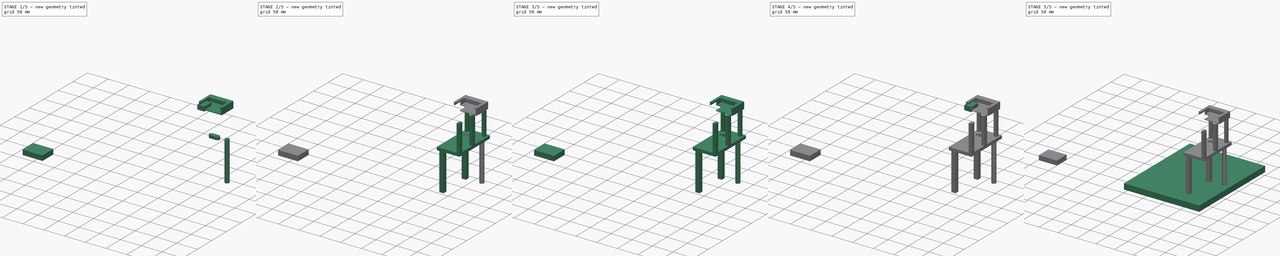
[diagram: build sequence overview — one tinted view per stage of 5, left to right]
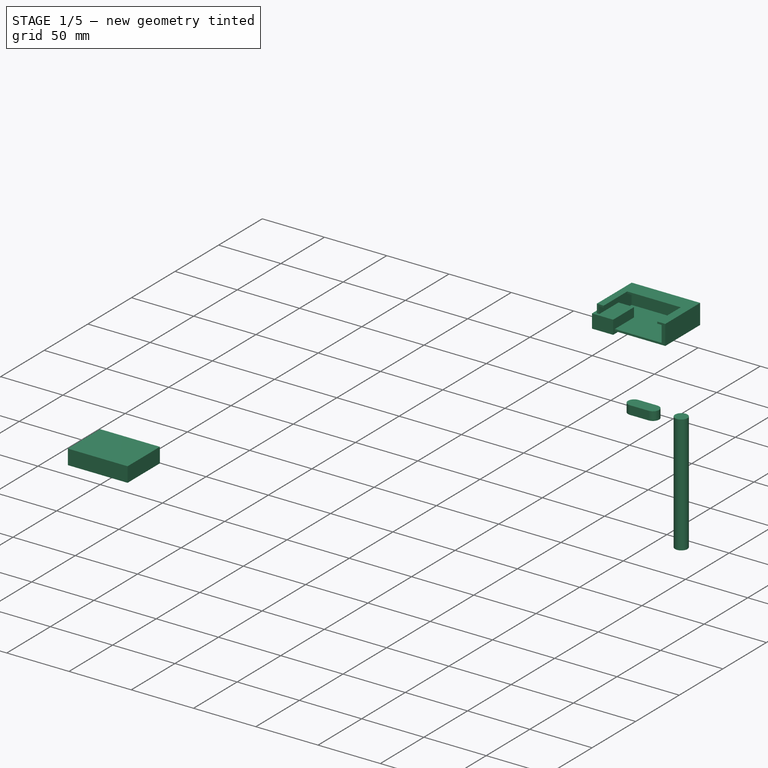
[diagram: stage 1 of 5 — iso view after this stage's code; geometry added in this stage tinted green]
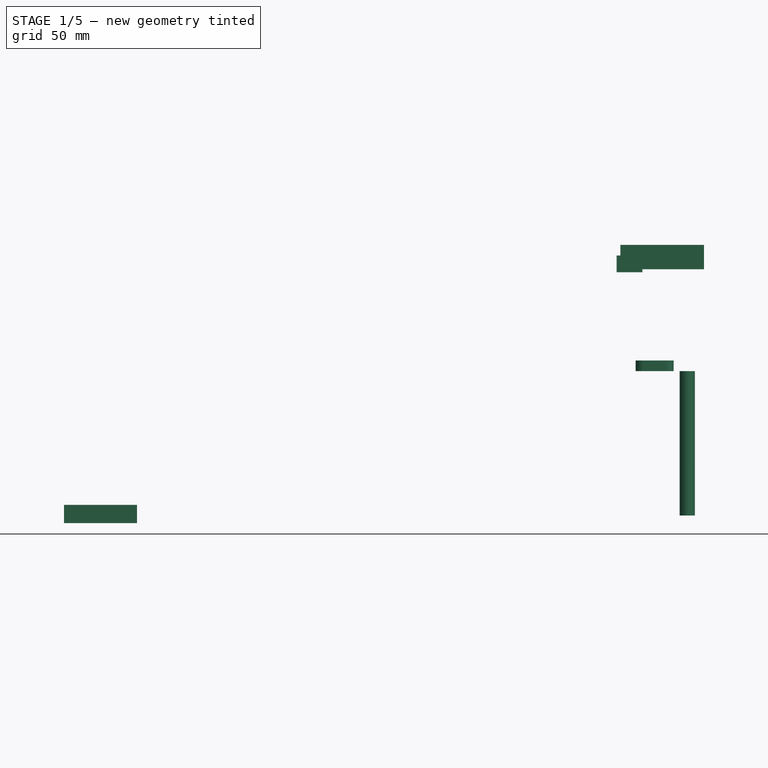
[diagram: stage 1 of 5 — front view after this stage's code; geometry added in this stage tinted green]
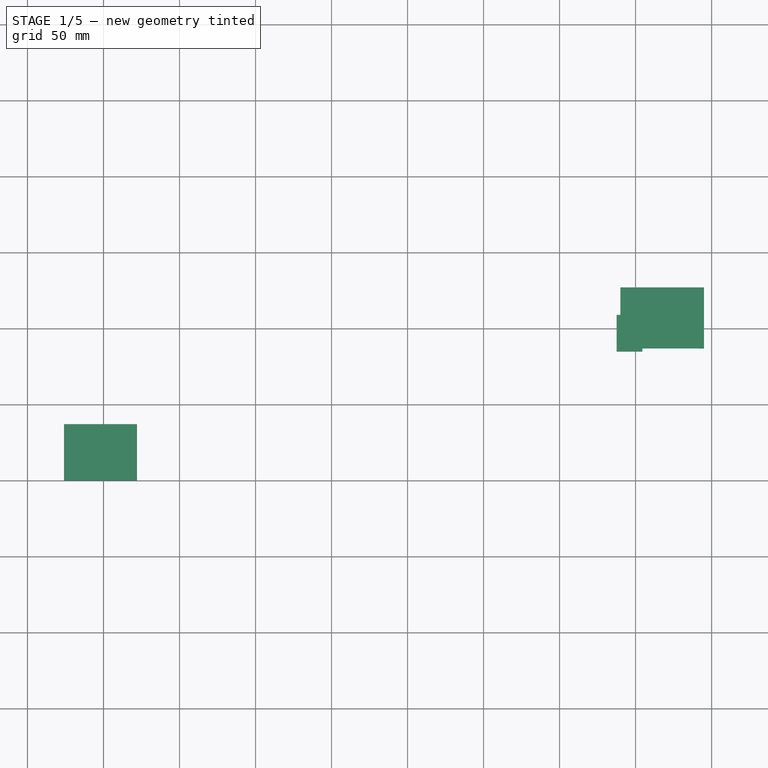
[diagram: stage 1 of 5 — top view after this stage's code; geometry added in this stage tinted green]
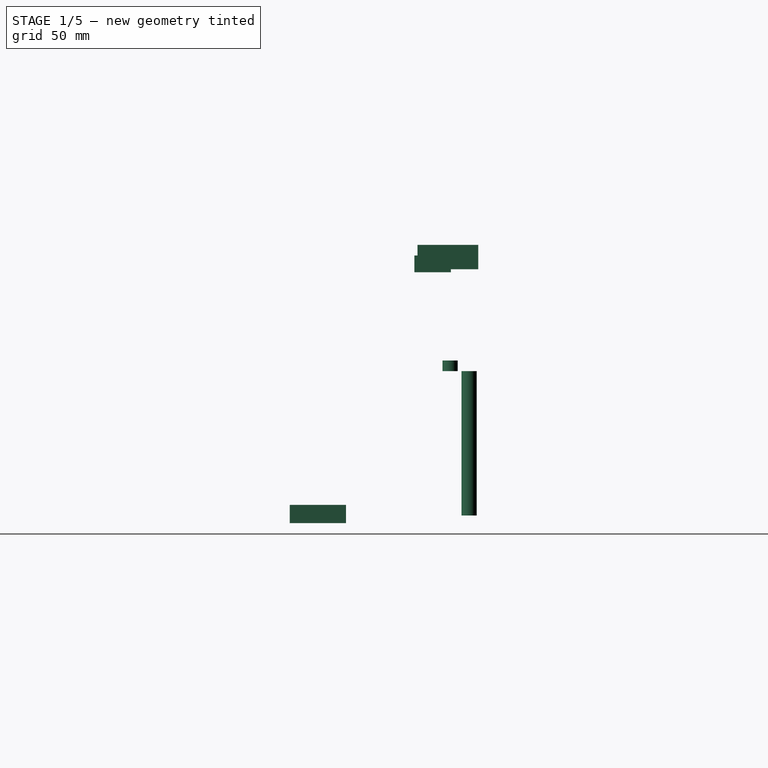
[diagram: stage 1 of 5 — right view after this stage's code; geometry added in this stage tinted green]
FCSTD DOCUMENT  (FreeCAD 1.0R39319 (Git))
Label: PCB-Board
License: All rights reserved
LicenseURL: https://en.wikipedia.org/wiki/All_rights_reserved
objects: Part::Feature×230, App::Part×75, Part::Box×61, Part::Cut×25, Sketcher::SketchObject×10, Part::Extrusion×10, Part::Cylinder×5
note: 351 computed .brp shape members not serialized (recipe doc carries the construction recipe); baked Part::Feature solids carry a one-line shape summary decoded from their .brp

FEATURE [Part::Box] Box135  label="Cube057"
  AttacherType = Attacher::AttachEngine3D
  Height = 16
  Length = 55
  Placement = pos=(340,124,183) rot=(1,0,0;3.14159rad)
  Width = 40
FEATURE [Part::Box] Box136  label="Cube058"
  AttacherType = Attacher::AttachEngine3D
  Height = 13
  Length = 50
  Placement = pos=(342,121,181.5) rot=(1,0,0;3.14159rad)
  Width = 37
FEATURE [Part::Box] Box137  label="Cube059"
  AttacherType = Attacher::AttachEngine3D
  Height = 11
  Length = 43
  Placement = pos=(345.5,111,185) rot=(1,0,0;3.14159rad)
  Width = 27
FEATURE [Part::Box] Box138  label="Cube060"
  AttacherType = Attacher::AttachEngine3D
  Height = 11
  Length = 17
  Placement = pos=(337.5,106,176) rot=(1,0,0;3.14159rad)
  Width = 24
FEATURE [Part::Cut] Cut024
  Base = -> Box135
  Refine = true
  Tool = -> Box136
FEATURE [Part::Cut] Cut025
  Base = -> Cut024
  Refine = true
  Tool = -> Box137
FEATURE [Part::Cylinder] Cylinder007
  Angle = 360
  AttacherType = Attacher::AttachEngine3D
  FirstAngle = 0
  Height = 95
  Placement = pos=(384,118,5) rot=(0,0,1;0rad)
  Radius = 5
  SecondAngle = 0
FEATURE [Sketcher::SketchObject] Sketch019
  ArcFitTolerance = 1e-06
  AttachmentSupport = -> [Box130]
  FullyConstrained = true
  MakeInternals = false
  MapMode = 5
  Placement = pos=(340,25,107) rot=(0,0,-1;1.5708rad)
  sketch-geometry (4):
    g0: ArcOfCircle CenterX=-80.5 CenterY=30 CenterZ=0 NormalX=0 NormalY=0 NormalZ=1 AngleXU=0 Radius=5 StartAngle=0 EndAngle=3.14159
    g1: ArcOfCircle CenterX=-80.5 CenterY=15 CenterZ=0 NormalX=0 NormalY=0 NormalZ=1 AngleXU=0 Radius=5 StartAngle=3.14159 EndAngle=6.28319
    g2: LineSegment StartX=-75.5 StartY=30 StartZ=0 EndX=-75.5 EndY=15 EndZ=0
    g3: LineSegment StartX=-85.5 StartY=30 StartZ=0 EndX=-85.5 EndY=15 EndZ=0
  constraints (10):
    c: Tangent(g0,g2) = 1.5708
    c: Tangent(g0,g3) = -1.5708
    c: Tangent(g1,g2) = 1.5708
    c: Tangent(g1,g3) = -1.5708
    c: Equal(g0,g1)
    c: Vertical(g2)
    c: Distance(g0,g-2) = 80.5
    c: DistanceY(g1,g0) = 15
    c: DistanceY(g-1,g0) = 30
    c: DistanceX(g1,g1) = 10
FEATURE [Part::Extrusion] Extrude008  label="Wirecut005"
  Base = -> Sketch019
  Dir = (0,0,1)
  DirMode = 2
  FaceMakerClass = Part::FaceMakerBullseye
  FaceMakerMode = 3
  LengthFwd = 0
  LengthRev = 7
  Solid = true
  Symmetric = false
FEATURE [Part::Feature] Part__Feature3673  label="ips7103"
  Placement = pos=(391,116,116) rot=(0,0,1;0rad)
  shape: bbox 48.08 x 13.99 x 44.08 mm, 1935 faces (baked)
FEATURE [Part::Feature] Part__Feature3674  label="ips7104"
  Placement = pos=(391,116,116) rot=(0,0,1;0rad)
  shape: bbox 48.08 x 13.99 x 44.08 mm, 1935 faces (baked)
FEATURE [Part::Feature] Part__Feature3675  label="ips7105"
  Placement = pos=(391,116,116) rot=(0,0,1;0rad)
  shape: bbox 48.08 x 13.99 x 44.08 mm, 1935 faces (baked)
FEATURE [Part::Feature] Part__Feature3676  label="ips7106"
  Placement = pos=(391,116,116) rot=(0,0,1;0rad)
  shape: bbox 48.08 x 13.99 x 44.08 mm, 1935 faces (baked)
FEATURE [Part::Box] Box139  label="Cube061"
  AttacherType = Attacher::AttachEngine3D
  Height = 37
  Length = 48
  Width = 12
FEATURE [App::Part] Part022
  Origin = -> Origin283
FEATURE [Part::Feature] Part__Feature3677  label="fan001"
  Placement = pos=(22.5475,33.2927,6) rot=(-0.588042,0.808831,0;3.14159rad)
  shape: bbox 15 x 15 x 4.502 mm, 133 faces (baked)
FEATURE [Part::Feature] Part__Feature3678  label="plastic022"
  Placement = pos=(22,36,-5.99e-13) rot=(1,0,0;3.14159rad)
  shape: bbox 1 x 1 x 12 mm, 5 faces (baked)
FEATURE [Part::Feature] Part__Feature3679  label="plastic023"
  Placement = pos=(22,36,-5.99e-13) rot=(1,0,0;3.14159rad)
  shape: bbox 1 x 1 x 12 mm, 5 faces (baked)
FEATURE [Part::Feature] Part__Feature3680  label="plastic024"
  Placement = pos=(22,36,-5.99e-13) rot=(1,0,0;3.14159rad)
  shape: bbox 1 x 1 x 12 mm, 5 faces (baked)
FEATURE [Part::Feature] Part__Feature3681  label="plastic025"
  Placement = pos=(22,36,-5.99e-13) rot=(1,0,0;3.14159rad)
  shape: bbox 1 x 1 x 12 mm, 5 faces (baked)
FEATURE [Part::Feature] Part__Feature3682  label="plastic026"
  Placement = pos=(22,36,-5.99e-13) rot=(1,0,0;3.14159rad)
  shape: bbox 7 x 11 x 3.1 mm, 19 faces (baked)
FEATURE [Part::Feature] Part__Feature3683  label="plastic027"
  Placement = pos=(22,36,-5.99e-13) rot=(1,0,0;3.14159rad)
  shape: bbox 1.4 x 1 x 1.7 mm, 6 faces (baked)
FEATURE [Part::Feature] Part__Feature3684  label="plastic028"
  Placement = pos=(22,36,-5.99e-13) rot=(1,0,0;3.14159rad)
  shape: bbox 1 x 1.4 x 1.7 mm, 6 faces (baked)
FEATURE [Part::Feature] Part__Feature3685  label="plastic029"
  Placement = pos=(22,36,-5.99e-13) rot=(1,0,0;3.14159rad)
  shape: bbox 1 x 1.4 x 1.7 mm, 6 faces (baked)
FEATURE [Part::Feature] Part__Feature3686  label="plastic030"
  Placement = pos=(22,36,-5.99e-13) rot=(1,0,0;3.14159rad)
  shape: bbox 1.4 x 1 x 1.7 mm, 6 faces (baked)
FEATURE [Part::Feature] Part__Feature3687  label="plastic031"
  Placement = pos=(22,36,-5.99e-13) rot=(1,0,0;3.14159rad)
  shape: bbox 1 x 1.4 x 1.7 mm, 6 faces (baked)
FEATURE [Part::Feature] Part__Feature3688  label="plastic032"
  Placement = pos=(22,36,-5.99e-13) rot=(1,0,0;3.14159rad)
  shape: bbox 1 x 1.4 x 1.7 mm, 6 faces (baked)
FEATURE [Part::Feature] Part__Feature3689  label="plastic033"
  Placement = pos=(22,36,-5.99e-13) rot=(1,0,0;3.14159rad)
  shape: bbox 1 x 1.4 x 1.7 mm, 6 faces (baked)
FEATURE [Part::Feature] Part__Feature3690  label="plastic034"
  Placement = pos=(22,36,-5.99e-13) rot=(1,0,0;3.14159rad)
  shape: bbox 1 x 1.4 x 1.7 mm, 6 faces (baked)
FEATURE [Part::Feature] Part__Feature3691  label="plastic035"
  Placement = pos=(22,36,-5.99e-13) rot=(1,0,0;3.14159rad)
  shape: bbox 1.4 x 1 x 1.7 mm, 6 faces (baked)
FEATURE [Part::Feature] Part__Feature3692  label="plastic036"
  Placement = pos=(22,36,-5.99e-13) rot=(1,0,0;3.14159rad)
  shape: bbox 1.4 x 1 x 1.7 mm, 6 faces (baked)
FEATURE [Part::Feature] Part__Feature3693  label="plastic037"
  Placement = pos=(22,36,-5.99e-13) rot=(1,0,0;3.14159rad)
  shape: bbox 1.4 x 1 x 1.7 mm, 6 faces (baked)
FEATURE [Part::Feature] Part__Feature3694  label="plastic038"
  Placement = pos=(22,36,-5.99e-13) rot=(1,0,0;3.14159rad)
  shape: bbox 1 x 1.4 x 1.7 mm, 6 faces (baked)
FEATURE [Part::Feature] Part__Feature3695  label="plastic039"
  Placement = pos=(22,36,-5.99e-13) rot=(1,0,0;3.14159rad)
  shape: bbox 1.4 x 1 x 1.7 mm, 6 faces (baked)
FEATURE [Part::Feature] Part__Feature3696  label="plastic040"
  Placement = pos=(22,36,-5.99e-13) rot=(1,0,0;3.14159rad)
  shape: bbox 1 x 1.4 x 1.7 mm, 6 faces (baked)
FEATURE [Part::Feature] Part__Feature3697  label="plastic041"
  Placement = pos=(22,36,-5.99e-13) rot=(1,0,0;3.14159rad)
  shape: bbox 12.54 x 4.701 x 4.3 mm, 21 faces (baked)
FEATURE [Part::Feature] Part__Feature3698  label="plastic042"
  Placement = pos=(22,36,-5.99e-13) rot=(1,0,0;3.14159rad)
  shape: bbox 16.75 x 16 x 6.5 mm, 18 faces (baked)
FEATURE [Part::Feature] Part__Feature3699  label="metal_cover_connector001"
  Placement = pos=(-2,18.5,11.5) rot=(0,0.707107,0.707107;3.14159rad)
  shape: bbox 48 x 37 x 6 mm, 58 faces (baked)
FEATURE [Part::Feature] Part__Feature3700  label="metal_cover_fan001"
  Placement = pos=(-2,18.5,0.5) rot=(0,-0.707107,0.707107;3.14159rad)
  shape: bbox 48 x 37 x 6 mm, 63 faces (baked)
FEATURE [Part::Feature] Part__Feature3701  label="1_27mm_pin_right_angle010"
  Placement = pos=(-0.770082,-1.65718,-0.233527) rot=(0,0,1;0rad)
  shape: bbox 2.2 x 4.2 x 0.4 mm, 17 faces (baked)
FEATURE [Part::Feature] Part__Feature3702  label="1_27mm_plastic_for_pin010"
  Placement = pos=(-0.452582,-1.45718,-0.233527) rot=(0,1,0;1.5708rad)
  shape: bbox 1.905 x 1 x 1.27 mm, 10 faces (baked)
FEATURE [Part::Feature] Part__Feature3703  label="1_27mm_pin_right_angle011"
  Placement = pos=(-0.770082,-1.65718,-0.233527) rot=(0,0,1;0rad)
  shape: bbox 2.2 x 4.2 x 0.4 mm, 17 faces (baked)
FEATURE [Part::Feature] Part__Feature3704  label="1_27mm_plastic_for_pin011"
  Placement = pos=(-0.452582,-1.45718,-0.233527) rot=(0,1,0;1.5708rad)
  shape: bbox 1.905 x 1 x 1.27 mm, 10 faces (baked)
FEATURE [Part::Feature] Part__Feature3705  label="1_27mm_pin_right_angle012"
  Placement = pos=(-0.770082,-1.65718,-0.233527) rot=(0,0,1;0rad)
  shape: bbox 2.2 x 4.2 x 0.4 mm, 17 faces (baked)
FEATURE [Part::Feature] Part__Feature3706  label="1_27mm_plastic_for_pin012"
  Placement = pos=(-0.452582,-1.45718,-0.233527) rot=(0,1,0;1.5708rad)
  shape: bbox 1.905 x 1 x 1.27 mm, 10 faces (baked)
FEATURE [Part::Feature] Part__Feature3707  label="1_27mm_pin_right_angle013"
  Placement = pos=(-0.770082,-1.65718,-0.233527) rot=(0,0,1;0rad)
  shape: bbox 2.2 x 4.2 x 0.4 mm, 17 faces (baked)
FEATURE [Part::Feature] Part__Feature3708  label="1_27mm_plastic_for_pin013"
  Placement = pos=(-0.452582,-1.45718,-0.233527) rot=(0,1,0;1.5708rad)
  shape: bbox 1.905 x 1 x 1.27 mm, 10 faces (baked)
FEATURE [Part::Feature] Part__Feature3709  label="1_27mm_pin_right_angle014"
  Placement = pos=(-0.770082,-1.65718,-0.233527) rot=(0,0,1;0rad)
  shape: bbox 2.2 x 4.2 x 0.4 mm, 17 faces (baked)
FEATURE [Part::Feature] Part__Feature3710  label="1_27mm_plastic_for_pin014"
  Placement = pos=(-0.452582,-1.45718,-0.233527) rot=(0,1,0;1.5708rad)
  shape: bbox 1.905 x 1 x 1.27 mm, 10 faces (baked)
FEATURE [Part::Feature] Part__Feature3711  label="1_27mm_pin_right_angle015"
  Placement = pos=(-0.770082,-1.65718,-0.233527) rot=(0,0,1;0rad)
  shape: bbox 2.2 x 4.2 x 0.4 mm, 17 faces (baked)
FEATURE [Part::Feature] Part__Feature3712  label="1_27mm_plastic_for_pin015"
  Placement = pos=(-0.452582,-1.45718,-0.233527) rot=(0,1,0;1.5708rad)
  shape: bbox 1.905 x 1 x 1.27 mm, 10 faces (baked)
FEATURE [Part::Feature] Part__Feature3713  label="1_27mm_pin_right_angle016"
  Placement = pos=(-0.770082,-1.65718,-0.233527) rot=(0,0,1;0rad)
  shape: bbox 2.2 x 4.2 x 0.4 mm, 17 faces (baked)
FEATURE [Part::Feature] Part__Feature3714  label="1_27mm_plastic_for_pin016"
  Placement = pos=(-0.452582,-1.45718,-0.233527) rot=(0,1,0;1.5708rad)
  shape: bbox 1.905 x 1 x 1.27 mm, 10 faces (baked)
FEATURE [Part::Feature] Part__Feature3715  label="1_27mm_pin_right_angle017"
  Placement = pos=(-0.770082,-1.65718,-0.233527) rot=(0,0,1;0rad)
  shape: bbox 2.2 x 4.2 x 0.4 mm, 17 faces (baked)
FEATURE [Part::Feature] Part__Feature3716  label="1_27mm_plastic_for_pin017"
  Placement = pos=(-0.452582,-1.45718,-0.233527) rot=(0,1,0;1.5708rad)
  shape: bbox 1.905 x 1 x 1.27 mm, 10 faces (baked)
FEATURE [Part::Feature] Part__Feature3717  label="1_27mm_pin_right_angle018"
  Placement = pos=(-0.770082,-1.65718,-0.233527) rot=(0,0,1;0rad)
  shape: bbox 2.2 x 4.2 x 0.4 mm, 17 faces (baked)
FEATURE [Part::Feature] Part__Feature3718  label="1_27mm_plastic_for_pin018"
  Placement = pos=(-0.452582,-1.45718,-0.233527) rot=(0,1,0;1.5708rad)
  shape: bbox 1.905 x 1 x 1.27 mm, 10 faces (baked)
FEATURE [Part::Feature] Part__Feature3719  label="1_27mm_pin_right_angle019"
  Placement = pos=(-0.770082,-1.65718,-0.233527) rot=(0,0,1;0rad)
  shape: bbox 2.2 x 4.2 x 0.4 mm, 17 faces (baked)
FEATURE [Part::Feature] Part__Feature3720  label="1_27mm_plastic_for_pin019"
  Placement = pos=(-0.452582,-1.45718,-0.233527) rot=(0,1,0;1.5708rad)
  shape: bbox 1.905 x 1 x 1.27 mm, 10 faces (baked)
FEATURE [Sketcher::SketchObject] Sketch020
  ArcFitTolerance = 1e-06
  AttachmentSupport = -> [Box139]
  FullyConstrained = true
  MakeInternals = false
  MapMode = 3
  Placement = pos=(0,0,0) rot=(1,0,0;1.5708rad)
  sketch-geometry (12):
    g0: ArcOfCircle CenterX=1e-16 CenterY=0 CenterZ=0 NormalX=0 NormalY=0 NormalZ=1 AngleXU=0 Radius=9.5 StartAngle=0.698132 EndAngle=2.44346
    g1: ArcOfCircle CenterX=1e-16 CenterY=0 CenterZ=0 NormalX=0 NormalY=0 NormalZ=1 AngleXU=0 Radius=9.5 StartAngle=2.79253 EndAngle=4.53786
    g2: ArcOfCircle CenterX=1e-16 CenterY=0 CenterZ=0 NormalX=0 NormalY=0 NormalZ=1 AngleXU=0 Radius=9.5 StartAngle=4.88692 EndAngle=6.63225
    g3: ArcOfCircle CenterX=1e-16 CenterY=0 CenterZ=0 NormalX=0 NormalY=0 NormalZ=1 AngleXU=0 Radius=6.75 StartAngle=4.88692 EndAngle=6.63225
    g4: ArcOfCircle CenterX=1e-16 CenterY=0 CenterZ=0 NormalX=0 NormalY=0 NormalZ=1 AngleXU=0 Radius=6.75 StartAngle=2.79253 EndAngle=4.53786
    g5: ArcOfCircle CenterX=1e-16 CenterY=0 CenterZ=0 NormalX=0 NormalY=0 NormalZ=1 AngleXU=0 Radius=6.75 StartAngle=0.698132 EndAngle=2.44346
    g6: LineSegment StartX=-7.27742 StartY=6.10648 StartZ=0 EndX=-5.1708 EndY=4.33882 EndZ=0
    g7: LineSegment StartX=1.17213 StartY=-6.64745 StartZ=0 EndX=1.64966 EndY=-9.35567 EndZ=0
    g8: LineSegment StartX=-1.17212 StartY=-6.64745 StartZ=0 EndX=-1.64966 EndY=-9.35567 EndZ=0
    g9: LineSegment StartX=-8.92708 StartY=3.24919 StartZ=0 EndX=-6.34293 EndY=2.30864 EndZ=0
    g10: LineSegment StartX=6.34293 StartY=2.30864 StartZ=0 EndX=8.92708 EndY=3.24919 EndZ=0
    g11: LineSegment StartX=5.1708 StartY=4.33882 StartZ=0 EndX=7.27742 EndY=6.10648 EndZ=0
  constraints (37):
    c: Radius(g0) = 9.5
    c: Angle(g0) = 1.74533
    c: Symmetric(g0,g0,g-2)
    c: DistanceY(g0,g-1) = 0
    c: Coincident(g1,g0)
    c: Radius(g1) = 9.5
    c: Angle(g1) = 1.74533
    c: Coincident(g2,g0)
    c: Radius(g2) = 9.5
    c: Angle(g2) = 1.74533
    c: Coincident(g3,g0)
    c: Coincident(g4,g0)
    c: Coincident(g5,g0)
    c: Radius(g3) = 6.75
    c: Angle(g3) = 1.74533
    c: Radius(g4) = 6.75
    c: Radius(g5) = 6.75
    c: Angle(g5) = 1.74533
    c: Coincident(g6,g0)
    c: Coincident(g6,g5)
    c: Coincident(g7,g3)
    c: Coincident(g7,g2)
    c: Coincident(g8,g4)
    c: Coincident(g8,g1)
    c: Coincident(g9,g1)
    c: Coincident(g9,g4)
    c: Coincident(g10,g3)
    c: Coincident(g10,g2)
    c: Coincident(g11,g5)
    c: Coincident(g11,g0)
    c: Block(g6)
    c: Block(g5)
    c: Block(g0)
    c: Block(g2)
    c: Block(g3)
    c: Block(g4)
    c: Block(g1)
FEATURE [Part::Extrusion] Extrude009
  Base = -> Sketch020
  Dir = (0,-1,2e-16)
  DirMode = 2
  FaceMakerClass = Part::FaceMakerBullseye
  FaceMakerMode = 3
  LengthFwd = 20
  LengthRev = 0
  Placement = pos=(12.4,2.6,25.0879) rot=(0,-1,0;5.23599rad)
  Solid = true
  Symmetric = false
FEATURE [Part::Cut] Cut027
  Base = -> Box139
  Placement = pos=(-26,37,-5.6e-15) rot=(1,0,0;1.5708rad)
  Tool = -> Extrude009
FEATURE [App::Part] _1_27mm_single_pin_assembled010  label="1_27mm_single_pin_assembled010"
  Group = -> [Part__Feature3701,Part__Feature3702]
  Origin = -> Origin271
  Placement = pos=(-0.361489,-0.21886,0.454215) rot=(0,0,1;0rad)
FEATURE [App::Part] _1_27mm_single_pin_assembled011  label="1_27mm_single_pin_assembled011"
  Group = -> [Part__Feature3703,Part__Feature3704]
  Origin = -> Origin272
  Placement = pos=(-0.361489,-0.21886,-0.795785) rot=(0,0,1;0rad)
FEATURE [App::Part] _1_27mm_single_pin_assembled012  label="1_27mm_single_pin_assembled012"
  Group = -> [Part__Feature3705,Part__Feature3706]
  Origin = -> Origin273
  Placement = pos=(-0.361489,-0.21886,-2.04579) rot=(0,0,1;0rad)
FEATURE [App::Part] _1_27mm_single_pin_assembled013  label="1_27mm_single_pin_assembled013"
  Group = -> [Part__Feature3707,Part__Feature3708]
  Origin = -> Origin274
  Placement = pos=(-0.361489,-0.21886,-3.29579) rot=(0,0,1;0rad)
FEATURE [App::Part] _1_27mm_single_pin_assembled014  label="1_27mm_single_pin_assembled014"
  Group = -> [Part__Feature3709,Part__Feature3710]
  Origin = -> Origin275
  Placement = pos=(-0.361489,-0.21886,-4.54579) rot=(0,0,1;0rad)
FEATURE [App::Part] _1_27mm_single_pin_assembled015  label="1_27mm_single_pin_assembled015"
  Group = -> [Part__Feature3711,Part__Feature3712]
  Origin = -> Origin276
  Placement = pos=(-3.17165,-0.21886,-3.76284) rot=(0,1,0;3.14159rad)
FEATURE [App::Part] _1_27mm_single_pin_assembled016  label="1_27mm_single_pin_assembled016"
  Group = -> [Part__Feature3713,Part__Feature3714]
  Origin = -> Origin277
  Placement = pos=(-3.17165,-0.21886,-5.01284) rot=(0,1,0;3.14159rad)
FEATURE [App::Part] _1_27mm_single_pin_assembled017  label="1_27mm_single_pin_assembled017"
  Group = -> [Part__Feature3715,Part__Feature3716]
  Origin = -> Origin278
  Placement = pos=(-3.17165,-0.21886,-0.0128383) rot=(0,1,0;3.14159rad)
FEATURE [App::Part] _1_27mm_single_pin_assembled018  label="1_27mm_single_pin_assembled018"
  Group = -> [Part__Feature3717,Part__Feature3718]
  Origin = -> Origin279
  Placement = pos=(-3.17165,-0.21886,-2.51284) rot=(0,1,0;3.14159rad)
FEATURE [App::Part] _1_27mm_single_pin_assembled019  label="1_27mm_single_pin_assembled019"
  Group = -> [Part__Feature3719,Part__Feature3720]
  Origin = -> Origin280
  Placement = pos=(-3.17165,-0.21886,-1.26284) rot=(0,1,0;3.14159rad)
FEATURE [App::Part] _1_27mm_2x10pin001  label="1_27mm_2x10pin001"
  Group = -> [_1_27mm_single_pin_assembled010,_1_27mm_single_pin_assembled011,_1_27mm_single_pin_assembled012,_1_27mm_single_pin_assembled013,_1_27mm_single_pin_assembled014,_1_27mm_single_pin_assembled015,_1_27mm_single_pin_assembled016,_1_27mm_single_pin_assembled017,_1_27mm_single_pin_assembled018,_1_27mm_single_pin_assembled019]
  Origin = -> Origin281
  Placement = pos=(18.0516,5.67069,10.176) rot=(1,0,0;1.5708rad)
FEATURE [App::Part] plastic001  label="plastic043"
  Group = -> [Part__Feature3678,Part__Feature3679,Part__Feature3680,Part__Feature3681,Part__Feature3682,Part__Feature3683,Part__Feature3684,Part__Feature3685,Part__Feature3686,Part__Feature3687,Part__Feature3688,Part__Feature3689,Part__Feature3690,Part__Feature3691,Part__Feature3692,Part__Feature3693,Part__Feature3694,Part__Feature3695,Part__Feature3696,Part__Feature3697,Part__Feature3698]
  Origin = -> Origin270
FEATURE [App::Part] pms7004
  Group = -> [Part__Feature3677,plastic001,Part__Feature3699,Part__Feature3700,_1_27mm_2x10pin001,Box139,Sketch020,Extrude009,Cut027,Part022]
  Origin = -> Origin282
  Placement = pos=(365,84,181) rot=(0,1,0;3.14159rad)
FEATURE [Part::Box] Box140  label="Cube062"
  AttacherType = Attacher::AttachEngine3D
  Height = 37
  Length = 48
  Width = 12
FEATURE [App::Part] Part023
  Origin = -> Origin297
FEATURE [Part::Feature] Part__Feature3721  label="fan002"
  Placement = pos=(22.5475,33.2927,6) rot=(-0.588042,0.808831,0;3.14159rad)
  shape: bbox 15 x 15 x 4.502 mm, 133 faces (baked)
FEATURE [Part::Feature] Part__Feature3722  label="plastic044"
  Placement = pos=(22,36,-5.99e-13) rot=(1,0,0;3.14159rad)
  shape: bbox 1 x 1 x 12 mm, 5 faces (baked)
FEATURE [Part::Feature] Part__Feature3723  label="plastic045"
  Placement = pos=(22,36,-5.99e-13) rot=(1,0,0;3.14159rad)
  shape: bbox 1 x 1 x 12 mm, 5 faces (baked)
FEATURE [Part::Feature] Part__Feature3724  label="plastic046"
  Placement = pos=(22,36,-5.99e-13) rot=(1,0,0;3.14159rad)
  shape: bbox 1 x 1 x 12 mm, 5 faces (baked)
FEATURE [Part::Feature] Part__Feature3725  label="plastic047"
  Placement = pos=(22,36,-5.99e-13) rot=(1,0,0;3.14159rad)
  shape: bbox 1 x 1 x 12 mm, 5 faces (baked)
FEATURE [Part::Feature] Part__Feature3726  label="plastic048"
  Placement = pos=(22,36,-5.99e-13) rot=(1,0,0;3.14159rad)
  shape: bbox 7 x 11 x 3.1 mm, 19 faces (baked)
FEATURE [Part::Feature] Part__Feature3727  label="plastic049"
  Placement = pos=(22,36,-5.99e-13) rot=(1,0,0;3.14159rad)
  shape: bbox 1.4 x 1 x 1.7 mm, 6 faces (baked)
FEATURE [Part::Feature] Part__Feature3728  label="plastic050"
  Placement = pos=(22,36,-5.99e-13) rot=(1,0,0;3.14159rad)
  shape: bbox 1 x 1.4 x 1.7 mm, 6 faces (baked)
FEATURE [Part::Feature] Part__Feature3729  label="plastic051"
  Placement = pos=(22,36,-5.99e-13) rot=(1,0,0;3.14159rad)
  shape: bbox 1 x 1.4 x 1.7 mm, 6 faces (baked)
FEATURE [Part::Feature] Part__Feature3730  label="plastic052"
  Placement = pos=(22,36,-5.99e-13) rot=(1,0,0;3.14159rad)
  shape: bbox 1.4 x 1 x 1.7 mm, 6 faces (baked)
FEATURE [Part::Feature] Part__Feature3731  label="plastic053"
  Placement = pos=(22,36,-5.99e-13) rot=(1,0,0;3.14159rad)
  shape: bbox 1 x 1.4 x 1.7 mm, 6 faces (baked)
FEATURE [Part::Feature] Part__Feature3732  label="plastic054"
  Placement = pos=(22,36,-5.99e-13) rot=(1,0,0;3.14159rad)
  shape: bbox 1 x 1.4 x 1.7 mm, 6 faces (baked)
FEATURE [Part::Feature] Part__Feature3733  label="plastic055"
  Placement = pos=(22,36,-5.99e-13) rot=(1,0,0;3.14159rad)
  shape: bbox 1 x 1.4 x 1.7 mm, 6 faces (baked)
FEATURE [Part::Feature] Part__Feature3734  label="plastic056"
  Placement = pos=(22,36,-5.99e-13) rot=(1,0,0;3.14159rad)
  shape: bbox 1 x 1.4 x 1.7 mm, 6 faces (baked)
FEATURE [Part::Feature] Part__Feature3735  label="plastic057"
  Placement = pos=(22,36,-5.99e-13) rot=(1,0,0;3.14159rad)
  shape: bbox 1.4 x 1 x 1.7 mm, 6 faces (baked)
FEATURE [Part::Feature] Part__Feature3736  label="plastic058"
  Placement = pos=(22,36,-5.99e-13) rot=(1,0,0;3.14159rad)
  shape: bbox 1.4 x 1 x 1.7 mm, 6 faces (baked)
FEATURE [Part::Feature] Part__Feature3737  label="plastic059"
  Placement = pos=(22,36,-5.99e-13) rot=(1,0,0;3.14159rad)
  shape: bbox 1.4 x 1 x 1.7 mm, 6 faces (baked)
FEATURE [Part::Feature] Part__Feature3738  label="plastic060"
  Placement = pos=(22,36,-5.99e-13) rot=(1,0,0;3.14159rad)
  shape: bbox 1 x 1.4 x 1.7 mm, 6 faces (baked)
FEATURE [Part::Feature] Part__Feature3739  label="plastic061"
  Placement = pos=(22,36,-5.99e-13) rot=(1,0,0;3.14159rad)
  shape: bbox 1.4 x 1 x 1.7 mm, 6 faces (baked)
FEATURE [Part::Feature] Part__Feature3740  label="plastic062"
  Placement = pos=(22,36,-5.99e-13) rot=(1,0,0;3.14159rad)
  shape: bbox 1 x 1.4 x 1.7 mm, 6 faces (baked)
FEATURE [Part::Feature] Part__Feature3741  label="plastic063"
  Placement = pos=(22,36,-5.99e-13) rot=(1,0,0;3.14159rad)
  shape: bbox 12.54 x 4.701 x 4.3 mm, 21 faces (baked)
FEATURE [Part::Feature] Part__Feature3742  label="plastic064"
  Placement = pos=(22,36,-5.99e-13) rot=(1,0,0;3.14159rad)
  shape: bbox 16.75 x 16 x 6.5 mm, 18 faces (baked)
FEATURE [Part::Feature] Part__Feature3743  label="metal_cover_connector002"
  Placement = pos=(-2,18.5,11.5) rot=(0,0.707107,0.707107;3.14159rad)
  shape: bbox 48 x 37 x 6 mm, 58 faces (baked)
FEATURE [Part::Feature] Part__Feature3744  label="metal_cover_fan002"
  Placement = pos=(-2,18.5,0.5) rot=(0,-0.707107,0.707107;3.14159rad)
  shape: bbox 48 x 37 x 6 mm, 63 faces (baked)
FEATURE [Part::Feature] Part__Feature3745  label="1_27mm_pin_right_angle020"
  Placement = pos=(-0.770082,-1.65718,-0.233527) rot=(0,0,1;0rad)
  shape: bbox 2.2 x 4.2 x 0.4 mm, 17 faces (baked)
FEATURE [Part::Feature] Part__Feature3746  label="1_27mm_plastic_for_pin020"
  Placement = pos=(-0.452582,-1.45718,-0.233527) rot=(0,1,0;1.5708rad)
  shape: bbox 1.905 x 1 x 1.27 mm, 10 faces (baked)
FEATURE [Part::Feature] Part__Feature3747  label="1_27mm_pin_right_angle021"
  Placement = pos=(-0.770082,-1.65718,-0.233527) rot=(0,0,1;0rad)
  shape: bbox 2.2 x 4.2 x 0.4 mm, 17 faces (baked)
FEATURE [Part::Feature] Part__Feature3748  label="1_27mm_plastic_for_pin021"
  Placement = pos=(-0.452582,-1.45718,-0.233527) rot=(0,1,0;1.5708rad)
  shape: bbox 1.905 x 1 x 1.27 mm, 10 faces (baked)
FEATURE [Part::Feature] Part__Feature3749  label="1_27mm_pin_right_angle022"
  Placement = pos=(-0.770082,-1.65718,-0.233527) rot=(0,0,1;0rad)
  shape: bbox 2.2 x 4.2 x 0.4 mm, 17 faces (baked)
FEATURE [Part::Feature] Part__Feature3750  label="1_27mm_plastic_for_pin022"
  Placement = pos=(-0.452582,-1.45718,-0.233527) rot=(0,1,0;1.5708rad)
  shape: bbox 1.905 x 1 x 1.27 mm, 10 faces (baked)
FEATURE [Part::Feature] Part__Feature3751  label="1_27mm_pin_right_angle023"
  Placement = pos=(-0.770082,-1.65718,-0.233527) rot=(0,0,1;0rad)
  shape: bbox 2.2 x 4.2 x 0.4 mm, 17 faces (baked)
FEATURE [Part::Feature] Part__Feature3752  label="1_27mm_plastic_for_pin023"
  Placement = pos=(-0.452582,-1.45718,-0.233527) rot=(0,1,0;1.5708rad)
  shape: bbox 1.905 x 1 x 1.27 mm, 10 faces (baked)
FEATURE [Part::Feature] Part__Feature3753  label="1_27mm_pin_right_angle024"
  Placement = pos=(-0.770082,-1.65718,-0.233527) rot=(0,0,1;0rad)
  shape: bbox 2.2 x 4.2 x 0.4 mm, 17 faces (baked)
FEATURE [Part::Feature] Part__Feature3754  label="1_27mm_plastic_for_pin024"
  Placement = pos=(-0.452582,-1.45718,-0.233527) rot=(0,1,0;1.5708rad)
  shape: bbox 1.905 x 1 x 1.27 mm, 10 faces (baked)
FEATURE [Part::Feature] Part__Feature3755  label="1_27mm_pin_right_angle025"
  Placement = pos=(-0.770082,-1.65718,-0.233527) rot=(0,0,1;0rad)
  shape: bbox 2.2 x 4.2 x 0.4 mm, 17 faces (baked)
FEATURE [Part::Feature] Part__Feature3756  label="1_27mm_plastic_for_pin025"
  Placement = pos=(-0.452582,-1.45718,-0.233527) rot=(0,1,0;1.5708rad)
  shape: bbox 1.905 x 1 x 1.27 mm, 10 faces (baked)
FEATURE [Part::Feature] Part__Feature3757  label="1_27mm_pin_right_angle026"
  Placement = pos=(-0.770082,-1.65718,-0.233527) rot=(0,0,1;0rad)
  shape: bbox 2.2 x 4.2 x 0.4 mm, 17 faces (baked)
FEATURE [Part::Feature] Part__Feature3758  label="1_27mm_plastic_for_pin026"
  Placement = pos=(-0.452582,-1.45718,-0.233527) rot=(0,1,0;1.5708rad)
  shape: bbox 1.905 x 1 x 1.27 mm, 10 faces (baked)
FEATURE [Part::Feature] Part__Feature3759  label="1_27mm_pin_right_angle027"
  Placement = pos=(-0.770082,-1.65718,-0.233527) rot=(0,0,1;0rad)
  shape: bbox 2.2 x 4.2 x 0.4 mm, 17 faces (baked)
FEATURE [Part::Feature] Part__Feature3760  label="1_27mm_plastic_for_pin027"
  Placement = pos=(-0.452582,-1.45718,-0.233527) rot=(0,1,0;1.5708rad)
  shape: bbox 1.905 x 1 x 1.27 mm, 10 faces (baked)
FEATURE [Part::Feature] Part__Feature3761  label="1_27mm_pin_right_angle028"
  Placement = pos=(-0.770082,-1.65718,-0.233527) rot=(0,0,1;0rad)
  shape: bbox 2.2 x 4.2 x 0.4 mm, 17 faces (baked)
FEATURE [Part::Feature] Part__Feature3762  label="1_27mm_plastic_for_pin028"
  Placement = pos=(-0.452582,-1.45718,-0.233527) rot=(0,1,0;1.5708rad)
  shape: bbox 1.905 x 1 x 1.27 mm, 10 faces (baked)
FEATURE [Part::Feature] Part__Feature3763  label="1_27mm_pin_right_angle029"
  Placement = pos=(-0.770082,-1.65718,-0.233527) rot=(0,0,1;0rad)
  shape: bbox 2.2 x 4.2 x 0.4 mm, 17 faces (baked)
FEATURE [Part::Feature] Part__Feature3764  label="1_27mm_plastic_for_pin029"
  Placement = pos=(-0.452582,-1.45718,-0.233527) rot=(0,1,0;1.5708rad)
  shape: bbox 1.905 x 1 x 1.27 mm, 10 faces (baked)
FEATURE [Sketcher::SketchObject] Sketch021
  ArcFitTolerance = 1e-06
  AttachmentSupport = -> [Box140]
  FullyConstrained = true
  MakeInternals = false
  MapMode = 3
  Placement = pos=(0,0,0) rot=(1,0,0;1.5708rad)
  sketch-geometry (12):
    g0: ArcOfCircle CenterX=1e-16 CenterY=0 CenterZ=0 NormalX=0 NormalY=0 NormalZ=1 AngleXU=0 Radius=9.5 StartAngle=0.698132 EndAngle=2.44346
    g1: ArcOfCircle CenterX=1e-16 CenterY=0 CenterZ=0 NormalX=0 NormalY=0 NormalZ=1 AngleXU=0 Radius=9.5 StartAngle=2.79253 EndAngle=4.53786
    g2: ArcOfCircle CenterX=1e-16 CenterY=0 CenterZ=0 NormalX=0 NormalY=0 NormalZ=1 AngleXU=0 Radius=9.5 StartAngle=4.88692 EndAngle=6.63225
    g3: ArcOfCircle CenterX=1e-16 CenterY=0 CenterZ=0 NormalX=0 NormalY=0 NormalZ=1 AngleXU=0 Radius=6.75 StartAngle=4.88692 EndAngle=6.63225
    g4: ArcOfCircle CenterX=1e-16 CenterY=0 CenterZ=0 NormalX=0 NormalY=0 NormalZ=1 AngleXU=0 Radius=6.75 StartAngle=2.79253 EndAngle=4.53786
    g5: ArcOfCircle CenterX=1e-16 CenterY=0 CenterZ=0 NormalX=0 NormalY=0 NormalZ=1 AngleXU=0 Radius=6.75 StartAngle=0.698132 EndAngle=2.44346
    g6: LineSegment StartX=-7.27742 StartY=6.10648 StartZ=0 EndX=-5.1708 EndY=4.33882 EndZ=0
    g7: LineSegment StartX=1.17213 StartY=-6.64745 StartZ=0 EndX=1.64966 EndY=-9.35567 EndZ=0
    g8: LineSegment StartX=-1.17212 StartY=-6.64745 StartZ=0 EndX=-1.64966 EndY=-9.35567 EndZ=0
    g9: LineSegment StartX=-8.92708 StartY=3.24919 StartZ=0 EndX=-6.34293 EndY=2.30864 EndZ=0
    g10: LineSegment StartX=6.34293 StartY=2.30864 StartZ=0 EndX=8.92708 EndY=3.24919 EndZ=0
    g11: LineSegment StartX=5.1708 StartY=4.33882 StartZ=0 EndX=7.27742 EndY=6.10648 EndZ=0
  constraints (37):
    c: Radius(g0) = 9.5
    c: Angle(g0) = 1.74533
    c: Symmetric(g0,g0,g-2)
    c: DistanceY(g0,g-1) = 0
    c: Coincident(g1,g0)
    c: Radius(g1) = 9.5
    c: Angle(g1) = 1.74533
    c: Coincident(g2,g0)
    c: Radius(g2) = 9.5
    c: Angle(g2) = 1.74533
    c: Coincident(g3,g0)
    c: Coincident(g4,g0)
    c: Coincident(g5,g0)
    c: Radius(g3) = 6.75
    c: Angle(g3) = 1.74533
    c: Radius(g4) = 6.75
    c: Radius(g5) = 6.75
    c: Angle(g5) = 1.74533
    c: Coincident(g6,g0)
    c: Coincident(g6,g5)
    c: Coincident(g7,g3)
    c: Coincident(g7,g2)
    c: Coincident(g8,g4)
    c: Coincident(g8,g1)
    c: Coincident(g9,g1)
    c: Coincident(g9,g4)
    c: Coincident(g10,g3)
    c: Coincident(g10,g2)
    c: Coincident(g11,g5)
    c: Coincident(g11,g0)
    c: Block(g6)
    c: Block(g5)
    c: Block(g0)
    c: Block(g2)
    c: Block(g3)
    c: Block(g4)
    c: Block(g1)
FEATURE [Part::Extrusion] Extrude010
  Base = -> Sketch021
  Dir = (0,-1,2e-16)
  DirMode = 2
  FaceMakerClass = Part::FaceMakerBullseye
  FaceMakerMode = 3
  LengthFwd = 20
  LengthRev = 0
  Placement = pos=(12.4,2.6,25.0879) rot=(0,-1,0;5.23599rad)
  Solid = true
  Symmetric = false
FEATURE [Part::Cut] Cut028
  Base = -> Box140
  Placement = pos=(-26,37,-5.6e-15) rot=(1,0,0;1.5708rad)
  Tool = -> Extrude010
FEATURE [App::Part] _1_27mm_single_pin_assembled020  label="1_27mm_single_pin_assembled020"
  Group = -> [Part__Feature3745,Part__Feature3746]
  Origin = -> Origin285
  Placement = pos=(-0.361489,-0.21886,0.454215) rot=(0,0,1;0rad)
FEATURE [App::Part] _1_27mm_single_pin_assembled021  label="1_27mm_single_pin_assembled021"
  Group = -> [Part__Feature3747,Part__Feature3748]
  Origin = -> Origin286
  Placement = pos=(-0.361489,-0.21886,-0.795785) rot=(0,0,1;0rad)
FEATURE [App::Part] _1_27mm_single_pin_assembled022  label="1_27mm_single_pin_assembled022"
  Group = -> [Part__Feature3749,Part__Feature3750]
  Origin = -> Origin287
  Placement = pos=(-0.361489,-0.21886,-2.04579) rot=(0,0,1;0rad)
FEATURE [App::Part] _1_27mm_single_pin_assembled023  label="1_27mm_single_pin_assembled023"
  Group = -> [Part__Feature3751,Part__Feature3752]
  Origin = -> Origin288
  Placement = pos=(-0.361489,-0.21886,-3.29579) rot=(0,0,1;0rad)
FEATURE [App::Part] _1_27mm_single_pin_assembled024  label="1_27mm_single_pin_assembled024"
  Group = -> [Part__Feature3753,Part__Feature3754]
  Origin = -> Origin289
  Placement = pos=(-0.361489,-0.21886,-4.54579) rot=(0,0,1;0rad)
FEATURE [App::Part] _1_27mm_single_pin_assembled025  label="1_27mm_single_pin_assembled025"
  Group = -> [Part__Feature3755,Part__Feature3756]
  Origin = -> Origin290
  Placement = pos=(-3.17165,-0.21886,-3.76284) rot=(0,1,0;3.14159rad)
FEATURE [App::Part] _1_27mm_single_pin_assembled026  label="1_27mm_single_pin_assembled026"
  Group = -> [Part__Feature3757,Part__Feature3758]
  Origin = -> Origin291
  Placement = pos=(-3.17165,-0.21886,-5.01284) rot=(0,1,0;3.14159rad)
FEATURE [App::Part] _1_27mm_single_pin_assembled027  label="1_27mm_single_pin_assembled027"
  Group = -> [Part__Feature3759,Part__Feature3760]
  Origin = -> Origin292
  Placement = pos=(-3.17165,-0.21886,-0.0128383) rot=(0,1,0;3.14159rad)
FEATURE [App::Part] _1_27mm_single_pin_assembled028  label="1_27mm_single_pin_assembled028"
  Group = -> [Part__Feature3761,Part__Feature3762]
  Origin = -> Origin293
  Placement = pos=(-3.17165,-0.21886,-2.51284) rot=(0,1,0;3.14159rad)
FEATURE [App::Part] _1_27mm_single_pin_assembled029  label="1_27mm_single_pin_assembled029"
  Group = -> [Part__Feature3763,Part__Feature3764]
  Origin = -> Origin294
  Placement = pos=(-3.17165,-0.21886,-1.26284) rot=(0,1,0;3.14159rad)
FEATURE [App::Part] _1_27mm_2x10pin002  label="1_27mm_2x10pin002"
  Group = -> [_1_27mm_single_pin_assembled020,_1_27mm_single_pin_assembled021,_1_27mm_single_pin_assembled022,_1_27mm_single_pin_assembled023,_1_27mm_single_pin_assembled024,_1_27mm_single_pin_assembled025,_1_27mm_single_pin_assembled026,_1_27mm_single_pin_assembled027,_1_27mm_single_pin_assembled028,_1_27mm_single_pin_assembled029]
  Origin = -> Origin295
  Placement = pos=(18.0516,5.67069,10.176) rot=(1,0,0;1.5708rad)
FEATURE [App::Part] plastic002  label="plastic065"
  Group = -> [Part__Feature3722,Part__Feature3723,Part__Feature3724,Part__Feature3725,Part__Feature3726,Part__Feature3727,Part__Feature3728,Part__Feature3729,Part__Feature3730,Part__Feature3731,Part__Feature3732,Part__Feature3733,Part__Feature3734,Part__Feature3735,Part__Feature3736,Part__Feature3737,Part__Feature3738,Part__Feature3739,Part__Feature3740,Part__Feature3741,Part__Feature3742]
  Origin = -> Origin284
FEATURE [App::Part] pms7005
  Group = -> [Part__Feature3721,plastic002,Part__Feature3743,Part__Feature3744,_1_27mm_2x10pin002,Box140,Sketch021,Extrude010,Cut028,Part023]
  Origin = -> Origin296
  Placement = pos=(365,84,181) rot=(0,1,0;3.14159rad)
FEATURE [Part::Box] Box141  label="Cube063"
  AttacherType = Attacher::AttachEngine3D
  Height = 37
  Length = 48
  Width = 12
FEATURE [App::Part] Part024
  Origin = -> Origin311
FEATURE [Part::Feature] Part__Feature3765  label="fan003"
  Placement = pos=(22.5475,33.2927,6) rot=(-0.588042,0.808831,0;3.14159rad)
  shape: bbox 15 x 15 x 4.502 mm, 133 faces (baked)
FEATURE [Part::Feature] Part__Feature3766  label="plastic066"
  Placement = pos=(22,36,-5.99e-13) rot=(1,0,0;3.14159rad)
  shape: bbox 1 x 1 x 12 mm, 5 faces (baked)
FEATURE [Part::Feature] Part__Feature3767  label="plastic067"
  Placement = pos=(22,36,-5.99e-13) rot=(1,0,0;3.14159rad)
  shape: bbox 1 x 1 x 12 mm, 5 faces (baked)
FEATURE [Part::Feature] Part__Feature3768  label="plastic068"
  Placement = pos=(22,36,-5.99e-13) rot=(1,0,0;3.14159rad)
  shape: bbox 1 x 1 x 12 mm, 5 faces (baked)
FEATURE [Part::Feature] Part__Feature3769  label="plastic069"
  Placement = pos=(22,36,-5.99e-13) rot=(1,0,0;3.14159rad)
  shape: bbox 1 x 1 x 12 mm, 5 faces (baked)
FEATURE [Part::Feature] Part__Feature3770  label="plastic070"
  Placement = pos=(22,36,-5.99e-13) rot=(1,0,0;3.14159rad)
  shape: bbox 7 x 11 x 3.1 mm, 19 faces (baked)
FEATURE [Part::Feature] Part__Feature3771  label="plastic071"
  Placement = pos=(22,36,-5.99e-13) rot=(1,0,0;3.14159rad)
  shape: bbox 1.4 x 1 x 1.7 mm, 6 faces (baked)
FEATURE [Part::Feature] Part__Feature3772  label="plastic072"
  Placement = pos=(22,36,-5.99e-13) rot=(1,0,0;3.14159rad)
  shape: bbox 1 x 1.4 x 1.7 mm, 6 faces (baked)
FEATURE [Part::Feature] Part__Feature3773  label="plastic073"
  Placement = pos=(22,36,-5.99e-13) rot=(1,0,0;3.14159rad)
  shape: bbox 1 x 1.4 x 1.7 mm, 6 faces (baked)
FEATURE [Part::Feature] Part__Feature3774  label="plastic074"
  Placement = pos=(22,36,-5.99e-13) rot=(1,0,0;3.14159rad)
  shape: bbox 1.4 x 1 x 1.7 mm, 6 faces (baked)
FEATURE [Part::Feature] Part__Feature3775  label="plastic075"
  Placement = pos=(22,36,-5.99e-13) rot=(1,0,0;3.14159rad)
  shape: bbox 1 x 1.4 x 1.7 mm, 6 faces (baked)
FEATURE [Part::Feature] Part__Feature3776  label="plastic076"
  Placement = pos=(22,36,-5.99e-13) rot=(1,0,0;3.14159rad)
  shape: bbox 1 x 1.4 x 1.7 mm, 6 faces (baked)
FEATURE [Part::Feature] Part__Feature3777  label="plastic077"
  Placement = pos=(22,36,-5.99e-13) rot=(1,0,0;3.14159rad)
  shape: bbox 1 x 1.4 x 1.7 mm, 6 faces (baked)
FEATURE [Part::Feature] Part__Feature3778  label="plastic078"
  Placement = pos=(22,36,-5.99e-13) rot=(1,0,0;3.14159rad)
  shape: bbox 1 x 1.4 x 1.7 mm, 6 faces (baked)
FEATURE [Part::Feature] Part__Feature3779  label="plastic079"
  Placement = pos=(22,36,-5.99e-13) rot=(1,0,0;3.14159rad)
  shape: bbox 1.4 x 1 x 1.7 mm, 6 faces (baked)
FEATURE [Part::Feature] Part__Feature3780  label="plastic080"
  Placement = pos=(22,36,-5.99e-13) rot=(1,0,0;3.14159rad)
  shape: bbox 1.4 x 1 x 1.7 mm, 6 faces (baked)
FEATURE [Part::Feature] Part__Feature3781  label="plastic081"
  Placement = pos=(22,36,-5.99e-13) rot=(1,0,0;3.14159rad)
  shape: bbox 1.4 x 1 x 1.7 mm, 6 faces (baked)
FEATURE [Part::Feature] Part__Feature3782  label="plastic082"
  Placement = pos=(22,36,-5.99e-13) rot=(1,0,0;3.14159rad)
  shape: bbox 1 x 1.4 x 1.7 mm, 6 faces (baked)
FEATURE [Part::Feature] Part__Feature3783  label="plastic083"
  Placement = pos=(22,36,-5.99e-13) rot=(1,0,0;3.14159rad)
  shape: bbox 1.4 x 1 x 1.7 mm, 6 faces (baked)
FEATURE [Part::Feature] Part__Feature3784  label="plastic084"
  Placement = pos=(22,36,-5.99e-13) rot=(1,0,0;3.14159rad)
  shape: bbox 1 x 1.4 x 1.7 mm, 6 faces (baked)
FEATURE [Part::Feature] Part__Feature3785  label="plastic085"
  Placement = pos=(22,36,-5.99e-13) rot=(1,0,0;3.14159rad)
  shape: bbox 12.54 x 4.701 x 4.3 mm, 21 faces (baked)
FEATURE [Part::Feature] Part__Feature3786  label="plastic086"
  Placement = pos=(22,36,-5.99e-13) rot=(1,0,0;3.14159rad)
  shape: bbox 16.75 x 16 x 6.5 mm, 18 faces (baked)
FEATURE [Part::Feature] Part__Feature3787  label="metal_cover_connector003"
  Placement = pos=(-2,18.5,11.5) rot=(0,0.707107,0.707107;3.14159rad)
  shape: bbox 48 x 37 x 6 mm, 58 faces (baked)
FEATURE [Part::Feature] Part__Feature3788  label="metal_cover_fan003"
  Placement = pos=(-2,18.5,0.5) rot=(0,-0.707107,0.707107;3.14159rad)
  shape: bbox 48 x 37 x 6 mm, 63 faces (baked)
FEATURE [Part::Feature] Part__Feature3789  label="1_27mm_pin_right_angle030"
  Placement = pos=(-0.770082,-1.65718,-0.233527) rot=(0,0,1;0rad)
  shape: bbox 2.2 x 4.2 x 0.4 mm, 17 faces (baked)
FEATURE [Part::Feature] Part__Feature3790  label="1_27mm_plastic_for_pin030"
  Placement = pos=(-0.452582,-1.45718,-0.233527) rot=(0,1,0;1.5708rad)
  shape: bbox 1.905 x 1 x 1.27 mm, 10 faces (baked)
FEATURE [Part::Feature] Part__Feature3791  label="1_27mm_pin_right_angle031"
  Placement = pos=(-0.770082,-1.65718,-0.233527) rot=(0,0,1;0rad)
  shape: bbox 2.2 x 4.2 x 0.4 mm, 17 faces (baked)
FEATURE [Part::Feature] Part__Feature3792  label="1_27mm_plastic_for_pin031"
  Placement = pos=(-0.452582,-1.45718,-0.233527) rot=(0,1,0;1.5708rad)
  shape: bbox 1.905 x 1 x 1.27 mm, 10 faces (baked)
FEATURE [Part::Feature] Part__Feature3793  label="1_27mm_pin_right_angle032"
  Placement = pos=(-0.770082,-1.65718,-0.233527) rot=(0,0,1;0rad)
  shape: bbox 2.2 x 4.2 x 0.4 mm, 17 faces (baked)
FEATURE [Part::Feature] Part__Feature3794  label="1_27mm_plastic_for_pin032"
  Placement = pos=(-0.452582,-1.45718,-0.233527) rot=(0,1,0;1.5708rad)
  shape: bbox 1.905 x 1 x 1.27 mm, 10 faces (baked)
FEATURE [Part::Feature] Part__Feature3795  label="1_27mm_pin_right_angle033"
  Placement = pos=(-0.770082,-1.65718,-0.233527) rot=(0,0,1;0rad)
  shape: bbox 2.2 x 4.2 x 0.4 mm, 17 faces (baked)
FEATURE [Part::Feature] Part__Feature3796  label="1_27mm_plastic_for_pin033"
  Placement = pos=(-0.452582,-1.45718,-0.233527) rot=(0,1,0;1.5708rad)
  shape: bbox 1.905 x 1 x 1.27 mm, 10 faces (baked)
FEATURE [Part::Feature] Part__Feature3797  label="1_27mm_pin_right_angle034"
  Placement = pos=(-0.770082,-1.65718,-0.233527) rot=(0,0,1;0rad)
  shape: bbox 2.2 x 4.2 x 0.4 mm, 17 faces (baked)
FEATURE [Part::Feature] Part__Feature3798  label="1_27mm_plastic_for_pin034"
  Placement = pos=(-0.452582,-1.45718,-0.233527) rot=(0,1,0;1.5708rad)
  shape: bbox 1.905 x 1 x 1.27 mm, 10 faces (baked)
FEATURE [Part::Feature] Part__Feature3799  label="1_27mm_pin_right_angle035"
  Placement = pos=(-0.770082,-1.65718,-0.233527) rot=(0,0,1;0rad)
  shape: bbox 2.2 x 4.2 x 0.4 mm, 17 faces (baked)
FEATURE [Part::Feature] Part__Feature3800  label="1_27mm_plastic_for_pin035"
  Placement = pos=(-0.452582,-1.45718,-0.233527) rot=(0,1,0;1.5708rad)
  shape: bbox 1.905 x 1 x 1.27 mm, 10 faces (baked)
FEATURE [Part::Feature] Part__Feature3801  label="1_27mm_pin_right_angle036"
  Placement = pos=(-0.770082,-1.65718,-0.233527) rot=(0,0,1;0rad)
  shape: bbox 2.2 x 4.2 x 0.4 mm, 17 faces (baked)
FEATURE [Part::Feature] Part__Feature3802  label="1_27mm_plastic_for_pin036"
  Placement = pos=(-0.452582,-1.45718,-0.233527) rot=(0,1,0;1.5708rad)
  shape: bbox 1.905 x 1 x 1.27 mm, 10 faces (baked)
FEATURE [Part::Feature] Part__Feature3803  label="1_27mm_pin_right_angle037"
  Placement = pos=(-0.770082,-1.65718,-0.233527) rot=(0,0,1;0rad)
  shape: bbox 2.2 x 4.2 x 0.4 mm, 17 faces (baked)
FEATURE [Part::Feature] Part__Feature3804  label="1_27mm_plastic_for_pin037"
  Placement = pos=(-0.452582,-1.45718,-0.233527) rot=(0,1,0;1.5708rad)
  shape: bbox 1.905 x 1 x 1.27 mm, 10 faces (baked)
FEATURE [Part::Feature] Part__Feature3805  label="1_27mm_pin_right_angle038"
  Placement = pos=(-0.770082,-1.65718,-0.233527) rot=(0,0,1;0rad)
  shape: bbox 2.2 x 4.2 x 0.4 mm, 17 faces (baked)
FEATURE [Part::Feature] Part__Feature3806  label="1_27mm_plastic_for_pin038"
  Placement = pos=(-0.452582,-1.45718,-0.233527) rot=(0,1,0;1.5708rad)
  shape: bbox 1.905 x 1 x 1.27 mm, 10 faces (baked)
FEATURE [Part::Feature] Part__Feature3807  label="1_27mm_pin_right_angle039"
  Placement = pos=(-0.770082,-1.65718,-0.233527) rot=(0,0,1;0rad)
  shape: bbox 2.2 x 4.2 x 0.4 mm, 17 faces (baked)
FEATURE [Part::Feature] Part__Feature3808  label="1_27mm_plastic_for_pin039"
  Placement = pos=(-0.452582,-1.45718,-0.233527) rot=(0,1,0;1.5708rad)
  shape: bbox 1.905 x 1 x 1.27 mm, 10 faces (baked)
FEATURE [Sketcher::SketchObject] Sketch022
  ArcFitTolerance = 1e-06
  AttachmentSupport = -> [Box141]
  FullyConstrained = true
  MakeInternals = false
  MapMode = 3
  Placement = pos=(0,0,0) rot=(1,0,0;1.5708rad)
  sketch-geometry (12):
    g0: ArcOfCircle CenterX=1e-16 CenterY=0 CenterZ=0 NormalX=0 NormalY=0 NormalZ=1 AngleXU=0 Radius=9.5 StartAngle=0.698132 EndAngle=2.44346
    g1: ArcOfCircle CenterX=1e-16 CenterY=0 CenterZ=0 NormalX=0 NormalY=0 NormalZ=1 AngleXU=0 Radius=9.5 StartAngle=2.79253 EndAngle=4.53786
    g2: ArcOfCircle CenterX=1e-16 CenterY=0 CenterZ=0 NormalX=0 NormalY=0 NormalZ=1 AngleXU=0 Radius=9.5 StartAngle=4.88692 EndAngle=6.63225
    g3: ArcOfCircle CenterX=1e-16 CenterY=0 CenterZ=0 NormalX=0 NormalY=0 NormalZ=1 AngleXU=0 Radius=6.75 StartAngle=4.88692 EndAngle=6.63225
    g4: ArcOfCircle CenterX=1e-16 CenterY=0 CenterZ=0 NormalX=0 NormalY=0 NormalZ=1 AngleXU=0 Radius=6.75 StartAngle=2.79253 EndAngle=4.53786
    g5: ArcOfCircle CenterX=1e-16 CenterY=0 CenterZ=0 NormalX=0 NormalY=0 NormalZ=1 AngleXU=0 Radius=6.75 StartAngle=0.698132 EndAngle=2.44346
    g6: LineSegment StartX=-7.27742 StartY=6.10648 StartZ=0 EndX=-5.1708 EndY=4.33882 EndZ=0
    g7: LineSegment StartX=1.17213 StartY=-6.64745 StartZ=0 EndX=1.64966 EndY=-9.35567 EndZ=0
    g8: LineSegment StartX=-1.17212 StartY=-6.64745 StartZ=0 EndX=-1.64966 EndY=-9.35567 EndZ=0
    g9: LineSegment StartX=-8.92708 StartY=3.24919 StartZ=0 EndX=-6.34293 EndY=2.30864 EndZ=0
    g10: LineSegment StartX=6.34293 StartY=2.30864 StartZ=0 EndX=8.92708 EndY=3.24919 EndZ=0
    g11: LineSegment StartX=5.1708 StartY=4.33882 StartZ=0 EndX=7.27742 EndY=6.10648 EndZ=0
  constraints (37):
    c: Radius(g0) = 9.5
    c: Angle(g0) = 1.74533
    c: Symmetric(g0,g0,g-2)
    c: DistanceY(g0,g-1) = 0
    c: Coincident(g1,g0)
    c: Radius(g1) = 9.5
    c: Angle(g1) = 1.74533
    c: Coincident(g2,g0)
    c: Radius(g2) = 9.5
    c: Angle(g2) = 1.74533
    c: Coincident(g3,g0)
    c: Coincident(g4,g0)
    c: Coincident(g5,g0)
    c: Radius(g3) = 6.75
    c: Angle(g3) = 1.74533
    c: Radius(g4) = 6.75
    c: Radius(g5) = 6.75
    c: Angle(g5) = 1.74533
    c: Coincident(g6,g0)
    c: Coincident(g6,g5)
    c: Coincident(g7,g3)
    c: Coincident(g7,g2)
    c: Coincident(g8,g4)
    c: Coincident(g8,g1)
    c: Coincident(g9,g1)
    c: Coincident(g9,g4)
    c: Coincident(g10,g3)
    c: Coincident(g10,g2)
    c: Coincident(g11,g5)
    c: Coincident(g11,g0)
    c: Block(g6)
    c: Block(g5)
    c: Block(g0)
    c: Block(g2)
    c: Block(g3)
    c: Block(g4)
    c: Block(g1)
FEATURE [Part::Extrusion] Extrude011
  Base = -> Sketch022
  Dir = (0,-1,2e-16)
  DirMode = 2
  FaceMakerClass = Part::FaceMakerBullseye
  FaceMakerMode = 3
  LengthFwd = 20
  LengthRev = 0
  Placement = pos=(12.4,2.6,25.0879) rot=(0,-1,0;5.23599rad)
  Solid = true
  Symmetric = false
FEATURE [Part::Cut] Cut029
  Base = -> Box141
  Placement = pos=(-26,37,-5.6e-15) rot=(1,0,0;1.5708rad)
  Tool = -> Extrude011
FEATURE [App::Part] _1_27mm_single_pin_assembled030  label="1_27mm_single_pin_assembled030"
  Group = -> [Part__Feature3789,Part__Feature3790]
  Origin = -> Origin299
  Placement = pos=(-0.361489,-0.21886,0.454215) rot=(0,0,1;0rad)
FEATURE [App::Part] _1_27mm_single_pin_assembled031  label="1_27mm_single_pin_assembled031"
  Group = -> [Part__Feature3791,Part__Feature3792]
  Origin = -> Origin300
  Placement = pos=(-0.361489,-0.21886,-0.795785) rot=(0,0,1;0rad)
FEATURE [App::Part] _1_27mm_single_pin_assembled032  label="1_27mm_single_pin_assembled032"
  Group = -> [Part__Feature3793,Part__Feature3794]
  Origin = -> Origin301
  Placement = pos=(-0.361489,-0.21886,-2.04579) rot=(0,0,1;0rad)
FEATURE [App::Part] _1_27mm_single_pin_assembled033  label="1_27mm_single_pin_assembled033"
  Group = -> [Part__Feature3795,Part__Feature3796]
  Origin = -> Origin302
  Placement = pos=(-0.361489,-0.21886,-3.29579) rot=(0,0,1;0rad)
FEATURE [App::Part] _1_27mm_single_pin_assembled034  label="1_27mm_single_pin_assembled034"
  Group = -> [Part__Feature3797,Part__Feature3798]
  Origin = -> Origin303
  Placement = pos=(-0.361489,-0.21886,-4.54579) rot=(0,0,1;0rad)
FEATURE [App::Part] _1_27mm_single_pin_assembled035  label="1_27mm_single_pin_assembled035"
  Group = -> [Part__Feature3799,Part__Feature3800]
  Origin = -> Origin304
  Placement = pos=(-3.17165,-0.21886,-3.76284) rot=(0,1,0;3.14159rad)
FEATURE [App::Part] _1_27mm_single_pin_assembled036  label="1_27mm_single_pin_assembled036"
  Group = -> [Part__Feature3801,Part__Feature3802]
  Origin = -> Origin305
  Placement = pos=(-3.17165,-0.21886,-5.01284) rot=(0,1,0;3.14159rad)
FEATURE [App::Part] _1_27mm_single_pin_assembled037  label="1_27mm_single_pin_assembled037"
  Group = -> [Part__Feature3803,Part__Feature3804]
  Origin = -> Origin306
  Placement = pos=(-3.17165,-0.21886,-0.0128383) rot=(0,1,0;3.14159rad)
FEATURE [App::Part] _1_27mm_single_pin_assembled038  label="1_27mm_single_pin_assembled038"
  Group = -> [Part__Feature3805,Part__Feature3806]
  Origin = -> Origin307
  Placement = pos=(-3.17165,-0.21886,-2.51284) rot=(0,1,0;3.14159rad)
FEATURE [App::Part] _1_27mm_single_pin_assembled039  label="1_27mm_single_pin_assembled039"
  Group = -> [Part__Feature3807,Part__Feature3808]
  Origin = -> Origin308
  Placement = pos=(-3.17165,-0.21886,-1.26284) rot=(0,1,0;3.14159rad)
FEATURE [App::Part] _1_27mm_2x10pin003  label="1_27mm_2x10pin003"
  Group = -> [_1_27mm_single_pin_assembled030,_1_27mm_single_pin_assembled031,_1_27mm_single_pin_assembled032,_1_27mm_single_pin_assembled033,_1_27mm_single_pin_assembled034,_1_27mm_single_pin_assembled035,_1_27mm_single_pin_assembled036,_1_27mm_single_pin_assembled037,_1_27mm_single_pin_assembled038,_1_27mm_single_pin_assembled039]
  Origin = -> Origin309
  Placement = pos=(18.0516,5.67069,10.176) rot=(1,0,0;1.5708rad)
FEATURE [App::Part] plastic003  label="plastic087"
  Group = -> [Part__Feature3766,Part__Feature3767,Part__Feature3768,Part__Feature3769,Part__Feature3770,Part__Feature3771,Part__Feature3772,Part__Feature3773,Part__Feature3774,Part__Feature3775,Part__Feature3776,Part__Feature3777,Part__Feature3778,Part__Feature3779,Part__Feature3780,Part__Feature3781,Part__Feature3782,Part__Feature3783,Part__Feature3784,Part__Feature3785,Part__Feature3786]
  Origin = -> Origin298
FEATURE [App::Part] pms7006
  Group = -> [Part__Feature3765,plastic003,Part__Feature3787,Part__Feature3788,_1_27mm_2x10pin003,Box141,Sketch022,Extrude011,Cut029,Part024]
  Origin = -> Origin310
  Placement = pos=(365,84,181) rot=(0,1,0;3.14159rad)
FEATURE [Part::Box] Box142  label="Cube064"
  AttacherType = Attacher::AttachEngine3D
  Height = 37
  Length = 48
  Width = 12
FEATURE [App::Part] Part025
  Origin = -> Origin325
FEATURE [Part::Feature] Part__Feature3809  label="fan004"
  Placement = pos=(22.5475,33.2927,6) rot=(-0.588042,0.808831,0;3.14159rad)
  shape: bbox 15 x 15 x 4.502 mm, 133 faces (baked)
FEATURE [Part::Feature] Part__Feature3810  label="plastic088"
  Placement = pos=(22,36,-5.99e-13) rot=(1,0,0;3.14159rad)
  shape: bbox 1 x 1 x 12 mm, 5 faces (baked)
FEATURE [Part::Feature] Part__Feature3811  label="plastic089"
  Placement = pos=(22,36,-5.99e-13) rot=(1,0,0;3.14159rad)
  shape: bbox 1 x 1 x 12 mm, 5 faces (baked)
FEATURE [Part::Feature] Part__Feature3812  label="plastic090"
  Placement = pos=(22,36,-5.99e-13) rot=(1,0,0;3.14159rad)
  shape: bbox 1 x 1 x 12 mm, 5 faces (baked)
FEATURE [Part::Feature] Part__Feature3813  label="plastic091"
  Placement = pos=(22,36,-5.99e-13) rot=(1,0,0;3.14159rad)
  shape: bbox 1 x 1 x 12 mm, 5 faces (baked)
FEATURE [Part::Feature] Part__Feature3814  label="plastic092"
  Placement = pos=(22,36,-5.99e-13) rot=(1,0,0;3.14159rad)
  shape: bbox 7 x 11 x 3.1 mm, 19 faces (baked)
FEATURE [Part::Feature] Part__Feature3815  label="plastic093"
  Placement = pos=(22,36,-5.99e-13) rot=(1,0,0;3.14159rad)
  shape: bbox 1.4 x 1 x 1.7 mm, 6 faces (baked)
FEATURE [Part::Feature] Part__Feature3816  label="plastic094"
  Placement = pos=(22,36,-5.99e-13) rot=(1,0,0;3.14159rad)
  shape: bbox 1 x 1.4 x 1.7 mm, 6 faces (baked)
FEATURE [Part::Feature] Part__Feature3817  label="plastic095"
  Placement = pos=(22,36,-5.99e-13) rot=(1,0,0;3.14159rad)
  shape: bbox 1 x 1.4 x 1.7 mm, 6 faces (baked)
FEATURE [Part::Feature] Part__Feature3818  label="plastic096"
  Placement = pos=(22,36,-5.99e-13) rot=(1,0,0;3.14159rad)
  shape: bbox 1.4 x 1 x 1.7 mm, 6 faces (baked)
FEATURE [Part::Feature] Part__Feature3819  label="plastic097"
  Placement = pos=(22,36,-5.99e-13) rot=(1,0,0;3.14159rad)
  shape: bbox 1 x 1.4 x 1.7 mm, 6 faces (baked)
FEATURE [Part::Feature] Part__Feature3820  label="plastic098"
  Placement = pos=(22,36,-5.99e-13) rot=(1,0,0;3.14159rad)
  shape: bbox 1 x 1.4 x 1.7 mm, 6 faces (baked)
FEATURE [Part::Feature] Part__Feature3821  label="plastic099"
  Placement = pos=(22,36,-5.99e-13) rot=(1,0,0;3.14159rad)
  shape: bbox 1 x 1.4 x 1.7 mm, 6 faces (baked)
FEATURE [Part::Feature] Part__Feature3822  label="plastic100"
  Placement = pos=(22,36,-5.99e-13) rot=(1,0,0;3.14159rad)
  shape: bbox 1 x 1.4 x 1.7 mm, 6 faces (baked)
FEATURE [Part::Feature] Part__Feature3823  label="plastic101"
  Placement = pos=(22,36,-5.99e-13) rot=(1,0,0;3.14159rad)
  shape: bbox 1.4 x 1 x 1.7 mm, 6 faces (baked)
FEATURE [Part::Feature] Part__Feature3824  label="plastic102"
  Placement = pos=(22,36,-5.99e-13) rot=(1,0,0;3.14159rad)
  shape: bbox 1.4 x 1 x 1.7 mm, 6 faces (baked)
FEATURE [Part::Feature] Part__Feature3825  label="plastic103"
  Placement = pos=(22,36,-5.99e-13) rot=(1,0,0;3.14159rad)
  shape: bbox 1.4 x 1 x 1.7 mm, 6 faces (baked)
FEATURE [Part::Feature] Part__Feature3826  label="plastic104"
  Placement = pos=(22,36,-5.99e-13) rot=(1,0,0;3.14159rad)
  shape: bbox 1 x 1.4 x 1.7 mm, 6 faces (baked)
FEATURE [Part::Feature] Part__Feature3827  label="plastic105"
  Placement = pos=(22,36,-5.99e-13) rot=(1,0,0;3.14159rad)
  shape: bbox 1.4 x 1 x 1.7 mm, 6 faces (baked)
FEATURE [Part::Feature] Part__Feature3828  label="plastic106"
  Placement = pos=(22,36,-5.99e-13) rot=(1,0,0;3.14159rad)
  shape: bbox 1 x 1.4 x 1.7 mm, 6 faces (baked)
FEATURE [Part::Feature] Part__Feature3829  label="plastic107"
  Placement = pos=(22,36,-5.99e-13) rot=(1,0,0;3.14159rad)
  shape: bbox 12.54 x 4.701 x 4.3 mm, 21 faces (baked)
FEATURE [Part::Feature] Part__Feature3830  label="plastic108"
  Placement = pos=(22,36,-5.99e-13) rot=(1,0,0;3.14159rad)
  shape: bbox 16.75 x 16 x 6.5 mm, 18 faces (baked)
FEATURE [Part::Feature] Part__Feature3831  label="metal_cover_connector004"
  Placement = pos=(-2,18.5,11.5) rot=(0,0.707107,0.707107;3.14159rad)
  shape: bbox 48 x 37 x 6 mm, 58 faces (baked)
FEATURE [Part::Feature] Part__Feature3832  label="metal_cover_fan004"
  Placement = pos=(-2,18.5,0.5) rot=(0,-0.707107,0.707107;3.14159rad)
  shape: bbox 48 x 37 x 6 mm, 63 faces (baked)
FEATURE [Part::Feature] Part__Feature3833  label="1_27mm_pin_right_angle040"
  Placement = pos=(-0.770082,-1.65718,-0.233527) rot=(0,0,1;0rad)
  shape: bbox 2.2 x 4.2 x 0.4 mm, 17 faces (baked)
FEATURE [Part::Feature] Part__Feature3834  label="1_27mm_plastic_for_pin040"
  Placement = pos=(-0.452582,-1.45718,-0.233527) rot=(0,1,0;1.5708rad)
  shape: bbox 1.905 x 1 x 1.27 mm, 10 faces (baked)
FEATURE [Part::Feature] Part__Feature3835  label="1_27mm_pin_right_angle041"
  Placement = pos=(-0.770082,-1.65718,-0.233527) rot=(0,0,1;0rad)
  shape: bbox 2.2 x 4.2 x 0.4 mm, 17 faces (baked)
FEATURE [Part::Feature] Part__Feature3836  label="1_27mm_plastic_for_pin041"
  Placement = pos=(-0.452582,-1.45718,-0.233527) rot=(0,1,0;1.5708rad)
  shape: bbox 1.905 x 1 x 1.27 mm, 10 faces (baked)
FEATURE [Part::Feature] Part__Feature3837  label="1_27mm_pin_right_angle042"
  Placement = pos=(-0.770082,-1.65718,-0.233527) rot=(0,0,1;0rad)
  shape: bbox 2.2 x 4.2 x 0.4 mm, 17 faces (baked)
FEATURE [Part::Feature] Part__Feature3838  label="1_27mm_plastic_for_pin042"
  Placement = pos=(-0.452582,-1.45718,-0.233527) rot=(0,1,0;1.5708rad)
  shape: bbox 1.905 x 1 x 1.27 mm, 10 faces (baked)
FEATURE [Part::Feature] Part__Feature3839  label="1_27mm_pin_right_angle043"
  Placement = pos=(-0.770082,-1.65718,-0.233527) rot=(0,0,1;0rad)
  shape: bbox 2.2 x 4.2 x 0.4 mm, 17 faces (baked)
FEATURE [Part::Feature] Part__Feature3840  label="1_27mm_plastic_for_pin043"
  Placement = pos=(-0.452582,-1.45718,-0.233527) rot=(0,1,0;1.5708rad)
  shape: bbox 1.905 x 1 x 1.27 mm, 10 faces (baked)
FEATURE [Part::Feature] Part__Feature3841  label="1_27mm_pin_right_angle044"
  Placement = pos=(-0.770082,-1.65718,-0.233527) rot=(0,0,1;0rad)
  shape: bbox 2.2 x 4.2 x 0.4 mm, 17 faces (baked)
FEATURE [Part::Feature] Part__Feature3842  label="1_27mm_plastic_for_pin044"
  Placement = pos=(-0.452582,-1.45718,-0.233527) rot=(0,1,0;1.5708rad)
  shape: bbox 1.905 x 1 x 1.27 mm, 10 faces (baked)
FEATURE [Part::Feature] Part__Feature3843  label="1_27mm_pin_right_angle045"
  Placement = pos=(-0.770082,-1.65718,-0.233527) rot=(0,0,1;0rad)
  shape: bbox 2.2 x 4.2 x 0.4 mm, 17 faces (baked)
FEATURE [Part::Feature] Part__Feature3844  label="1_27mm_plastic_for_pin045"
  Placement = pos=(-0.452582,-1.45718,-0.233527) rot=(0,1,0;1.5708rad)
  shape: bbox 1.905 x 1 x 1.27 mm, 10 faces (baked)
FEATURE [Part::Feature] Part__Feature3845  label="1_27mm_pin_right_angle046"
  Placement = pos=(-0.770082,-1.65718,-0.233527) rot=(0,0,1;0rad)
  shape: bbox 2.2 x 4.2 x 0.4 mm, 17 faces (baked)
FEATURE [Part::Feature] Part__Feature3846  label="1_27mm_plastic_for_pin046"
  Placement = pos=(-0.452582,-1.45718,-0.233527) rot=(0,1,0;1.5708rad)
  shape: bbox 1.905 x 1 x 1.27 mm, 10 faces (baked)
FEATURE [Part::Feature] Part__Feature3847  label="1_27mm_pin_right_angle047"
  Placement = pos=(-0.770082,-1.65718,-0.233527) rot=(0,0,1;0rad)
  shape: bbox 2.2 x 4.2 x 0.4 mm, 17 faces (baked)
FEATURE [Part::Feature] Part__Feature3848  label="1_27mm_plastic_for_pin047"
  Placement = pos=(-0.452582,-1.45718,-0.233527) rot=(0,1,0;1.5708rad)
  shape: bbox 1.905 x 1 x 1.27 mm, 10 faces (baked)
FEATURE [Part::Feature] Part__Feature3849  label="1_27mm_pin_right_angle048"
  Placement = pos=(-0.770082,-1.65718,-0.233527) rot=(0,0,1;0rad)
  shape: bbox 2.2 x 4.2 x 0.4 mm, 17 faces (baked)
FEATURE [Part::Feature] Part__Feature3850  label="1_27mm_plastic_for_pin048"
  Placement = pos=(-0.452582,-1.45718,-0.233527) rot=(0,1,0;1.5708rad)
  shape: bbox 1.905 x 1 x 1.27 mm, 10 faces (baked)
FEATURE [Part::Feature] Part__Feature3851  label="1_27mm_pin_right_angle049"
  Placement = pos=(-0.770082,-1.65718,-0.233527) rot=(0,0,1;0rad)
  shape: bbox 2.2 x 4.2 x 0.4 mm, 17 faces (baked)
FEATURE [Part::Feature] Part__Feature3852  label="1_27mm_plastic_for_pin049"
  Placement = pos=(-0.452582,-1.45718,-0.233527) rot=(0,1,0;1.5708rad)
  shape: bbox 1.905 x 1 x 1.27 mm, 10 faces (baked)
FEATURE [Sketcher::SketchObject] Sketch023
  ArcFitTolerance = 1e-06
  AttachmentSupport = -> [Box142]
  FullyConstrained = true
  MakeInternals = false
  MapMode = 3
  Placement = pos=(0,0,0) rot=(1,0,0;1.5708rad)
  sketch-geometry (12):
    g0: ArcOfCircle CenterX=1e-16 CenterY=0 CenterZ=0 NormalX=0 NormalY=0 NormalZ=1 AngleXU=0 Radius=9.5 StartAngle=0.698132 EndAngle=2.44346
    g1: ArcOfCircle CenterX=1e-16 CenterY=0 CenterZ=0 NormalX=0 NormalY=0 NormalZ=1 AngleXU=0 Radius=9.5 StartAngle=2.79253 EndAngle=4.53786
    g2: ArcOfCircle CenterX=1e-16 CenterY=0 CenterZ=0 NormalX=0 NormalY=0 NormalZ=1 AngleXU=0 Radius=9.5 StartAngle=4.88692 EndAngle=6.63225
    g3: ArcOfCircle CenterX=1e-16 CenterY=0 CenterZ=0 NormalX=0 NormalY=0 NormalZ=1 AngleXU=0 Radius=6.75 StartAngle=4.88692 EndAngle=6.63225
    g4: ArcOfCircle CenterX=1e-16 CenterY=0 CenterZ=0 NormalX=0 NormalY=0 NormalZ=1 AngleXU=0 Radius=6.75 StartAngle=2.79253 EndAngle=4.53786
    g5: ArcOfCircle CenterX=1e-16 CenterY=0 CenterZ=0 NormalX=0 NormalY=0 NormalZ=1 AngleXU=0 Radius=6.75 StartAngle=0.698132 EndAngle=2.44346
    g6: LineSegment StartX=-7.27742 StartY=6.10648 StartZ=0 EndX=-5.1708 EndY=4.33882 EndZ=0
    g7: LineSegment StartX=1.17213 StartY=-6.64745 StartZ=0 EndX=1.64966 EndY=-9.35567 EndZ=0
    g8: LineSegment StartX=-1.17212 StartY=-6.64745 StartZ=0 EndX=-1.64966 EndY=-9.35567 EndZ=0
    g9: LineSegment StartX=-8.92708 StartY=3.24919 StartZ=0 EndX=-6.34293 EndY=2.30864 EndZ=0
    g10: LineSegment StartX=6.34293 StartY=2.30864 StartZ=0 EndX=8.92708 EndY=3.24919 EndZ=0
    g11: LineSegment StartX=5.1708 StartY=4.33882 StartZ=0 EndX=7.27742 EndY=6.10648 EndZ=0
  constraints (37):
    c: Radius(g0) = 9.5
    c: Angle(g0) = 1.74533
    c: Symmetric(g0,g0,g-2)
    c: DistanceY(g0,g-1) = 0
    c: Coincident(g1,g0)
    c: Radius(g1) = 9.5
    c: Angle(g1) = 1.74533
    c: Coincident(g2,g0)
    c: Radius(g2) = 9.5
    c: Angle(g2) = 1.74533
    c: Coincident(g3,g0)
    c: Coincident(g4,g0)
    c: Coincident(g5,g0)
    c: Radius(g3) = 6.75
    c: Angle(g3) = 1.74533
    c: Radius(g4) = 6.75
    c: Radius(g5) = 6.75
    c: Angle(g5) = 1.74533
    c: Coincident(g6,g0)
    c: Coincident(g6,g5)
    c: Coincident(g7,g3)
    c: Coincident(g7,g2)
    c: Coincident(g8,g4)
    c: Coincident(g8,g1)
    c: Coincident(g9,g1)
    c: Coincident(g9,g4)
    c: Coincident(g10,g3)
    c: Coincident(g10,g2)
    c: Coincident(g11,g5)
    c: Coincident(g11,g0)
    c: Block(g6)
    c: Block(g5)
    c: Block(g0)
    c: Block(g2)
    c: Block(g3)
    c: Block(g4)
    c: Block(g1)
FEATURE [Part::Extrusion] Extrude012
  Base = -> Sketch023
  Dir = (0,-1,2e-16)
  DirMode = 2
  FaceMakerClass = Part::FaceMakerBullseye
  FaceMakerMode = 3
  LengthFwd = 20
  LengthRev = 0
  Placement = pos=(12.4,2.6,25.0879) rot=(0,-1,0;5.23599rad)
  Solid = true
  Symmetric = false
FEATURE [Part::Cut] Cut030
  Base = -> Box142
  Placement = pos=(-26,37,-5.6e-15) rot=(1,0,0;1.5708rad)
  Tool = -> Extrude012
FEATURE [App::Part] _1_27mm_single_pin_assembled040  label="1_27mm_single_pin_assembled040"
  Group = -> [Part__Feature3833,Part__Feature3834]
  Origin = -> Origin313
  Placement = pos=(-0.361489,-0.21886,0.454215) rot=(0,0,1;0rad)
FEATURE [App::Part] _1_27mm_single_pin_assembled041  label="1_27mm_single_pin_assembled041"
  Group = -> [Part__Feature3835,Part__Feature3836]
  Origin = -> Origin314
  Placement = pos=(-0.361489,-0.21886,-0.795785) rot=(0,0,1;0rad)
FEATURE [App::Part] _1_27mm_single_pin_assembled042  label="1_27mm_single_pin_assembled042"
  Group = -> [Part__Feature3837,Part__Feature3838]
  Origin = -> Origin315
  Placement = pos=(-0.361489,-0.21886,-2.04579) rot=(0,0,1;0rad)
FEATURE [App::Part] _1_27mm_single_pin_assembled043  label="1_27mm_single_pin_assembled043"
  Group = -> [Part__Feature3839,Part__Feature3840]
  Origin = -> Origin316
  Placement = pos=(-0.361489,-0.21886,-3.29579) rot=(0,0,1;0rad)
FEATURE [App::Part] _1_27mm_single_pin_assembled044  label="1_27mm_single_pin_assembled044"
  Group = -> [Part__Feature3841,Part__Feature3842]
  Origin = -> Origin317
  Placement = pos=(-0.361489,-0.21886,-4.54579) rot=(0,0,1;0rad)
FEATURE [App::Part] _1_27mm_single_pin_assembled045  label="1_27mm_single_pin_assembled045"
  Group = -> [Part__Feature3843,Part__Feature3844]
  Origin = -> Origin318
  Placement = pos=(-3.17165,-0.21886,-3.76284) rot=(0,1,0;3.14159rad)
FEATURE [App::Part] _1_27mm_single_pin_assembled046  label="1_27mm_single_pin_assembled046"
  Group = -> [Part__Feature3845,Part__Feature3846]
  Origin = -> Origin319
  Placement = pos=(-3.17165,-0.21886,-5.01284) rot=(0,1,0;3.14159rad)
FEATURE [App::Part] _1_27mm_single_pin_assembled047  label="1_27mm_single_pin_assembled047"
  Group = -> [Part__Feature3847,Part__Feature3848]
  Origin = -> Origin320
  Placement = pos=(-3.17165,-0.21886,-0.0128383) rot=(0,1,0;3.14159rad)
FEATURE [App::Part] _1_27mm_single_pin_assembled048  label="1_27mm_single_pin_assembled048"
  Group = -> [Part__Feature3849,Part__Feature3850]
  Origin = -> Origin321
  Placement = pos=(-3.17165,-0.21886,-2.51284) rot=(0,1,0;3.14159rad)
FEATURE [App::Part] _1_27mm_single_pin_assembled049  label="1_27mm_single_pin_assembled049"
  Group = -> [Part__Feature3851,Part__Feature3852]
  Origin = -> Origin322
  Placement = pos=(-3.17165,-0.21886,-1.26284) rot=(0,1,0;3.14159rad)
FEATURE [App::Part] _1_27mm_2x10pin004  label="1_27mm_2x10pin004"
  Group = -> [_1_27mm_single_pin_assembled040,_1_27mm_single_pin_assembled041,_1_27mm_single_pin_assembled042,_1_27mm_single_pin_assembled043,_1_27mm_single_pin_assembled044,_1_27mm_single_pin_assembled045,_1_27mm_single_pin_assembled046,_1_27mm_single_pin_assembled047,_1_27mm_single_pin_assembled048,_1_27mm_single_pin_assembled049]
  Origin = -> Origin323
  Placement = pos=(18.0516,5.67069,10.176) rot=(1,0,0;1.5708rad)
FEATURE [App::Part] plastic004  label="plastic109"
  Group = -> [Part__Feature3810,Part__Feature3811,Part__Feature3812,Part__Feature3813,Part__Feature3814,Part__Feature3815,Part__Feature3816,Part__Feature3817,Part__Feature3818,Part__Feature3819,Part__Feature3820,Part__Feature3821,Part__Feature3822,Part__Feature3823,Part__Feature3824,Part__Feature3825,Part__Feature3826,Part__Feature3827,Part__Feature3828,Part__Feature3829,Part__Feature3830]
  Origin = -> Origin312
FEATURE [App::Part] pms7007
  Group = -> [Part__Feature3809,plastic004,Part__Feature3831,Part__Feature3832,_1_27mm_2x10pin004,Box142,Sketch023,Extrude012,Cut030,Part025]
  Origin = -> Origin324
  Placement = pos=(365,84,181) rot=(0,1,0;3.14159rad)
FEATURE [Part::Feature] _1_007_solid  label="_1_007 (Solid)"
  shape: bbox 59.5 x 75 x 63.5 mm, 6936 faces (baked)
FEATURE [App::Part] Part021  label="PCB_Holder006"
  Group = -> [Box128,Box129,Sketch019,Extrude008,Cut023,Box130,Box131,Box132,Box133,Box134,Cylinder007,Box135,Box136,Box137,Box138,Cut024,Cut026,Cut025,Part__Feature3673,pms7007,_1_007_solid]
  Origin = -> Origin269
  Placement = pos=(-131,-20,0) rot=(0,0,1;0rad)
FEATURE [Part::Feature] _1_006_solid  label="_1_006 (Solid)"
  shape: bbox 59.5 x 75 x 63.5 mm, 6936 faces (baked)
FEATURE [App::Part] Part020  label="PCB_Holder005"
  Group = -> [Box117,Box118,Sketch018,Extrude007,Cut019,Box119,Box120,Box121,Box122,Box123,Cylinder006,Box124,Box125,Box126,Box127,Cut020,Cut022,Cut021,Part__Feature3674,pms7006,_1_006_solid]
  Origin = -> Origin267
  Placement = pos=(-132,111,0) rot=(0,0,1;0rad)
FEATURE [Part::Feature] _1_005_solid  label="_1_005 (Solid)"
  shape: bbox 59.5 x 75 x 63.5 mm, 6936 faces (baked)
FEATURE [App::Part] Part018  label="PCB_Holder003"
  Group = -> [Box094,Box095,Sketch016,Extrude005,Cut011,Box096,Box097,Box098,Box099,Box100,Cylinder004,Box101,Box102,Box103,Box104,Cut012,Cut014,Cut013,Part__Feature3676,pms7004,_1_005_solid]
  Origin = -> Origin263
  Placement = pos=(-69,48,0) rot=(0,0,1;0rad)
FEATURE [Part::Feature] _1_004_solid  label="_1_004 (Solid)"
  shape: bbox 59.5 x 75 x 63.5 mm, 6936 faces (baked)
FEATURE [App::Part] Part017  label="PCB_Holder002"
  Group = -> [Box083,Box084,Sketch015,Extrude004,Cut007,Box085,Box086,Box087,Box088,Box089,Cylinder003,Box090,Box091,Box092,Box093,Cut008,Cut010,Cut009,Part__Feature3675,pms7005,_1_004_solid]
  Origin = -> Origin261
  Placement = pos=(0,111,0) rot=(0,0,1;0rad)
FEATURE [Part::Feature] _1_003_solid  label="_1_003 (Solid)"
  shape: bbox 59.5 x 75 x 63.5 mm, 6936 faces (baked)
FEATURE [App::Part] Part  label="PCB_Holder001"
  Group = -> [Box072,Box073,Sketch014,Extrude,Cut003,Box074,Box075,Box076,Box077,Box078,Cylinder002,Box079,Box080,Box081,Box082,Cut004,Cut006,Cut005,pms7003,Part__Feature3629,_1_003_solid]
  Origin = -> Origin
  Placement = pos=(0,-19,0) rot=(0,0,1;0rad)
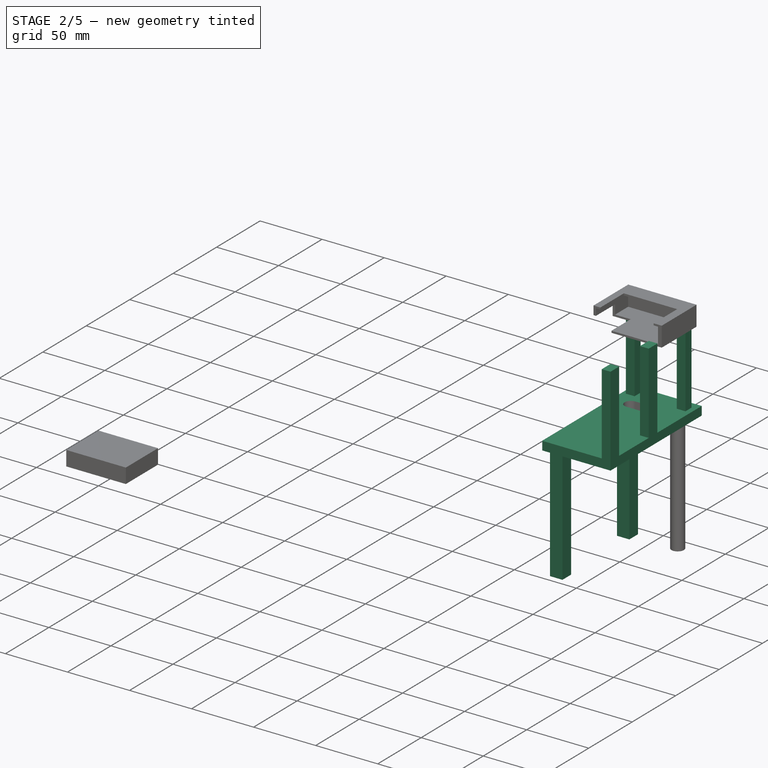
[diagram: stage 2 of 5 — iso view after this stage's code; geometry added in this stage tinted green]
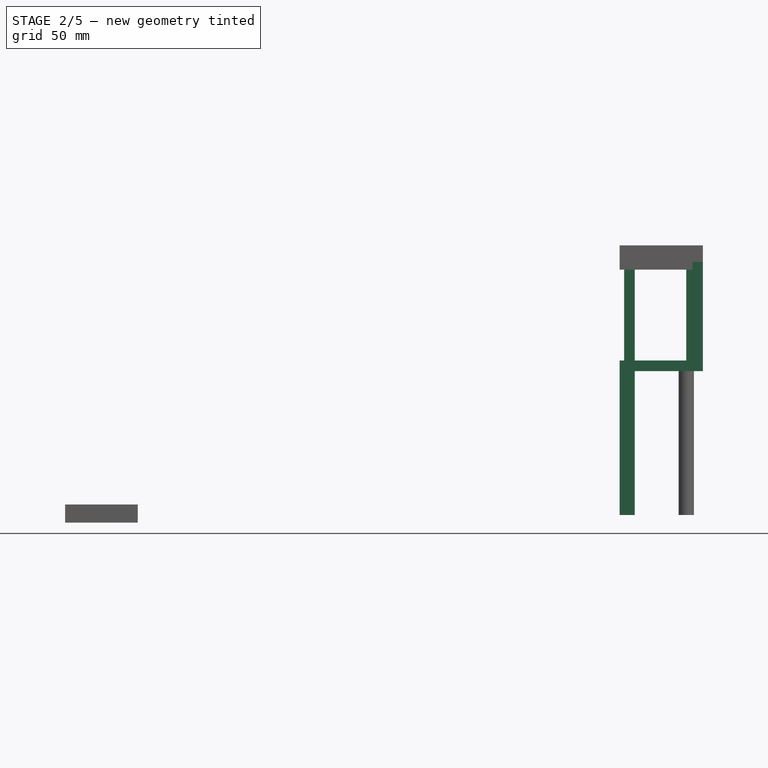
[diagram: stage 2 of 5 — front view after this stage's code; geometry added in this stage tinted green]
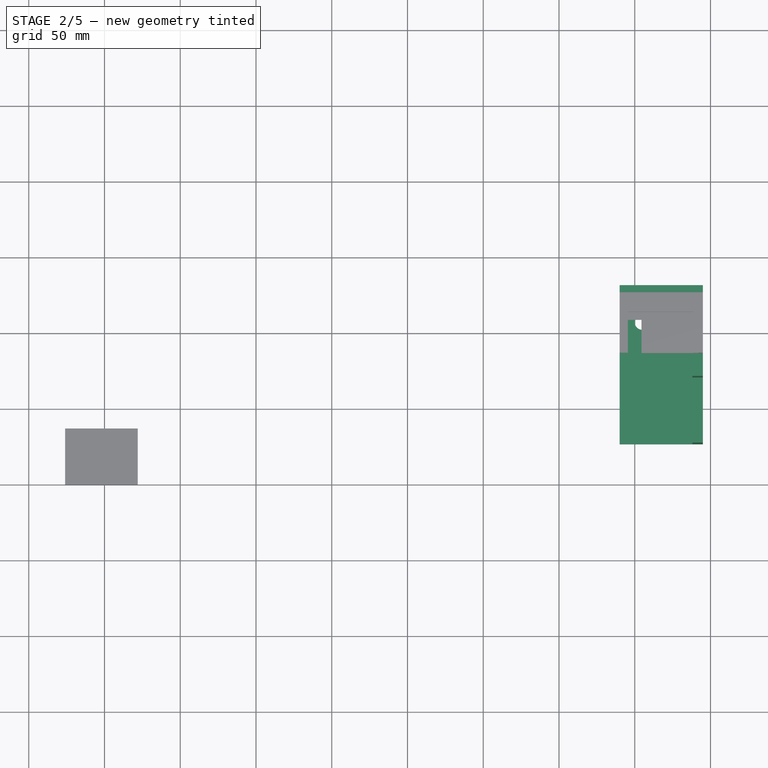
[diagram: stage 2 of 5 — top view after this stage's code; geometry added in this stage tinted green]
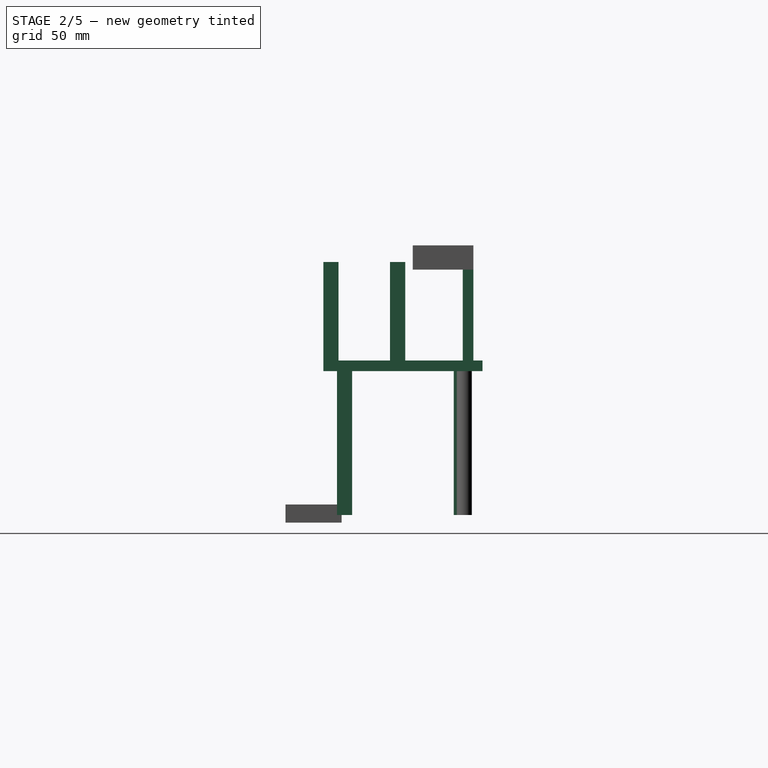
[diagram: stage 2 of 5 — right view after this stage's code; geometry added in this stage tinted green]
FEATURE [Part::Box] Box119  label="Platform006"
  AttacherType = Attacher::AttachEngine3D
  Height = 55
  Length = 7
  Placement = pos=(340,25,107) rot=(0,1,0;1.5708rad)
  Width = 105
FEATURE [Part::Box] Box124  label="Cube047"
  AttacherType = Attacher::AttachEngine3D
  Height = 16
  Length = 55
  Placement = pos=(340,124,183) rot=(1,0,0;3.14159rad)
  Width = 40
FEATURE [Part::Box] Box125  label="Cube048"
  AttacherType = Attacher::AttachEngine3D
  Height = 13
  Length = 50
  Placement = pos=(342,121,181.5) rot=(1,0,0;3.14159rad)
  Width = 37
FEATURE [Part::Box] Box126  label="Cube049"
  AttacherType = Attacher::AttachEngine3D
  Height = 11
  Length = 43
  Placement = pos=(345.5,111,185) rot=(1,0,0;3.14159rad)
  Width = 27
FEATURE [Part::Box] Box127  label="Cube050"
  AttacherType = Attacher::AttachEngine3D
  Height = 11
  Length = 17
  Placement = pos=(337.5,106,176) rot=(1,0,0;3.14159rad)
  Width = 24
FEATURE [Part::Box] Box128  label="Cube051"
  AttacherType = Attacher::AttachEngine3D
  Height = 95
  Length = 10
  Placement = pos=(340,34,5) rot=(0,0,1;0rad)
  Width = 10
FEATURE [Part::Box] Box129  label="Cube052"
  AttacherType = Attacher::AttachEngine3D
  Height = 95
  Length = 10
  Placement = pos=(340,111,5) rot=(0,0,1;0rad)
  Width = 10
FEATURE [Part::Box] Box130  label="Platform007"
  AttacherType = Attacher::AttachEngine3D
  Height = 55
  Length = 7
  Placement = pos=(340,25,107) rot=(0,1,0;1.5708rad)
  Width = 105
FEATURE [Part::Box] Box131  label="Cube053"
  AttacherType = Attacher::AttachEngine3D
  Height = 65
  Length = 7
  Placement = pos=(388,25,107) rot=(0,0,1;0rad)
  Width = 10
FEATURE [Part::Box] Box132  label="Cube054"
  AttacherType = Attacher::AttachEngine3D
  Height = 65
  Length = 7
  Placement = pos=(388,69,107) rot=(0,0,1;0rad)
  Width = 10
FEATURE [Part::Box] Box133  label="Cube055"
  AttacherType = Attacher::AttachEngine3D
  Height = 60
  Length = 7
  Placement = pos=(384,117,107) rot=(0,0,1;0rad)
  Width = 7
FEATURE [Part::Box] Box134  label="Cube056"
  AttacherType = Attacher::AttachEngine3D
  Height = 60
  Length = 7
  Placement = pos=(343,117,107) rot=(0,0,1;0rad)
  Width = 7
FEATURE [Part::Cut] Cut020
  Base = -> Box124
  Refine = true
  Tool = -> Box125
FEATURE [Part::Cut] Cut021
  Base = -> Cut020
  Refine = true
  Tool = -> Box126
FEATURE [Part::Cut] Cut022
  Base = -> Cut021
  Refine = true
  Tool = -> Box127
FEATURE [Part::Cut] Cut026
  Base = -> Cut025
  Refine = true
  Tool = -> Box138
FEATURE [Part::Cylinder] Cylinder006
  Angle = 360
  AttacherType = Attacher::AttachEngine3D
  FirstAngle = 0
  Height = 95
  Placement = pos=(384,118,5) rot=(0,0,1;0rad)
  Radius = 5
  SecondAngle = 0
FEATURE [Sketcher::SketchObject] Sketch018
  ArcFitTolerance = 1e-06
  AttachmentSupport = -> [Box119]
  FullyConstrained = true
  MakeInternals = false
  MapMode = 5
  Placement = pos=(340,25,107) rot=(0,0,-1;1.5708rad)
  sketch-geometry (4):
    g0: ArcOfCircle CenterX=-80.5 CenterY=30 CenterZ=0 NormalX=0 NormalY=0 NormalZ=1 AngleXU=0 Radius=5 StartAngle=0 EndAngle=3.14159
    g1: ArcOfCircle CenterX=-80.5 CenterY=15 CenterZ=0 NormalX=0 NormalY=0 NormalZ=1 AngleXU=0 Radius=5 StartAngle=3.14159 EndAngle=6.28319
    g2: LineSegment StartX=-75.5 StartY=30 StartZ=0 EndX=-75.5 EndY=15 EndZ=0
    g3: LineSegment StartX=-85.5 StartY=30 StartZ=0 EndX=-85.5 EndY=15 EndZ=0
  constraints (10):
    c: Tangent(g0,g2) = 1.5708
    c: Tangent(g0,g3) = -1.5708
    c: Tangent(g1,g2) = 1.5708
    c: Tangent(g1,g3) = -1.5708
    c: Equal(g0,g1)
    c: Vertical(g2)
    c: Distance(g0,g-2) = 80.5
    c: DistanceY(g1,g0) = 15
    c: DistanceY(g-1,g0) = 30
    c: DistanceX(g1,g1) = 10
FEATURE [Part::Extrusion] Extrude007  label="Wirecut004"
  Base = -> Sketch018
  Dir = (0,0,1)
  DirMode = 2
  FaceMakerClass = Part::FaceMakerBullseye
  FaceMakerMode = 3
  LengthFwd = 0
  LengthRev = 7
  Solid = true
  Symmetric = false
FEATURE [Part::Cut] Cut019
  Base = -> Box119
  Refine = true
  Tool = -> Extrude007
FEATURE [Part::Cut] Cut023
  Base = -> Box130
  Refine = true
  Tool = -> Extrude008
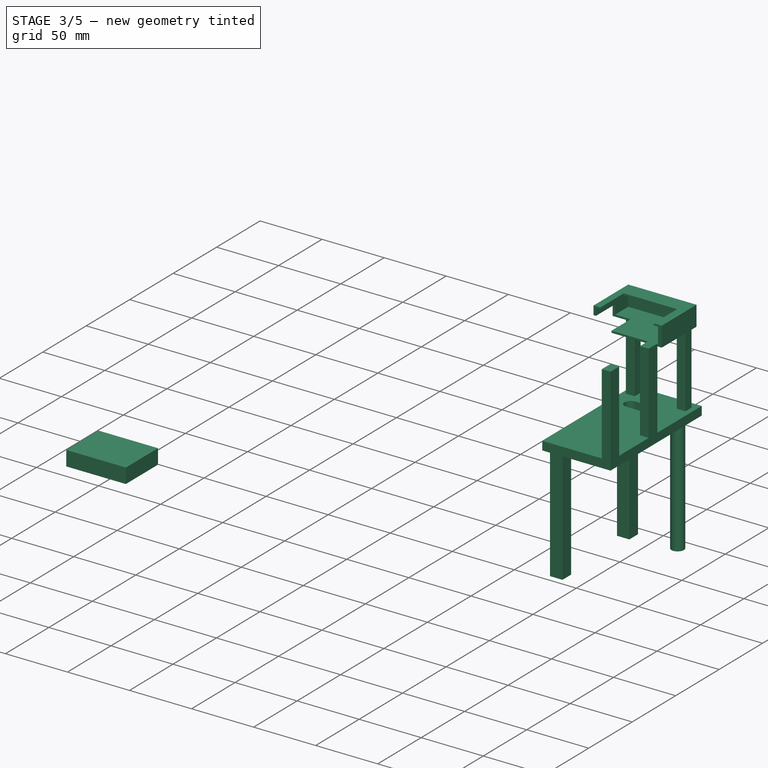
[diagram: stage 3 of 5 — iso view after this stage's code; geometry added in this stage tinted green]
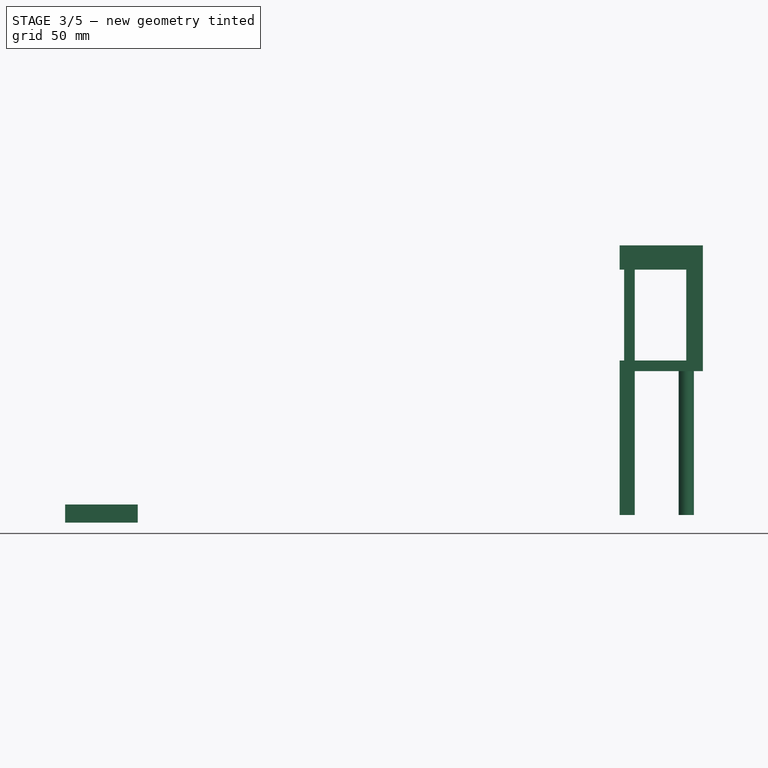
[diagram: stage 3 of 5 — front view after this stage's code; geometry added in this stage tinted green]
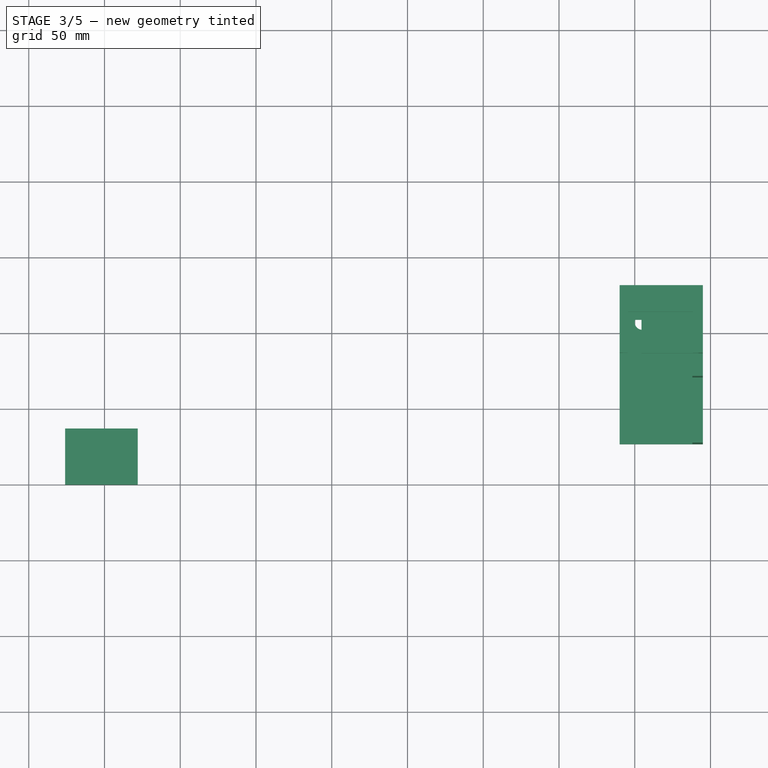
[diagram: stage 3 of 5 — top view after this stage's code; geometry added in this stage tinted green]
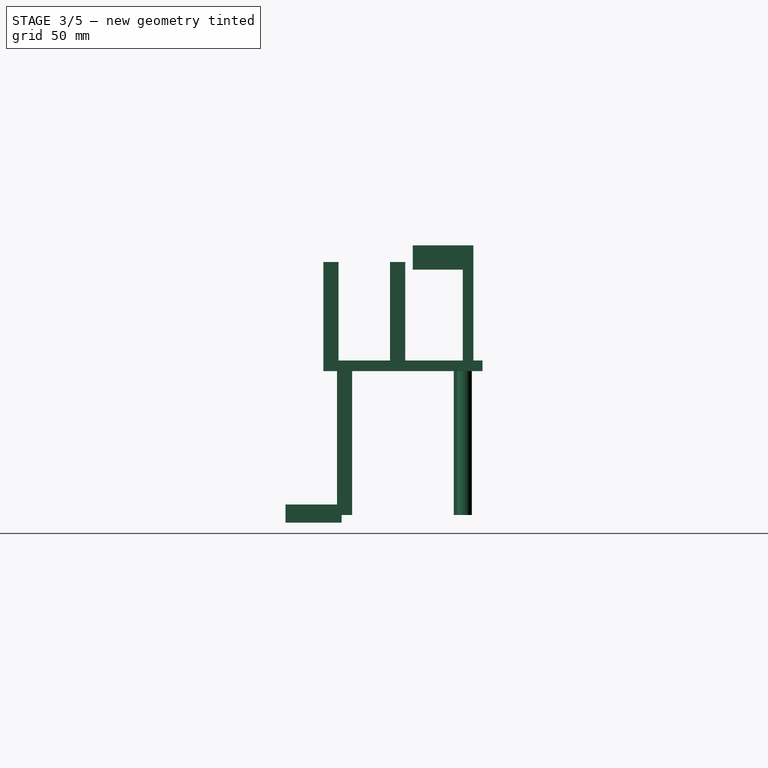
[diagram: stage 3 of 5 — right view after this stage's code; geometry added in this stage tinted green]
FEATURE [Part::Box] Box096  label="Platform004"
  AttacherType = Attacher::AttachEngine3D
  Height = 55
  Length = 7
  Placement = pos=(340,25,107) rot=(0,1,0;1.5708rad)
  Width = 105
FEATURE [Part::Box] Box097  label="Cube023"
  AttacherType = Attacher::AttachEngine3D
  Height = 65
  Length = 7
  Placement = pos=(388,25,107) rot=(0,0,1;0rad)
  Width = 10
FEATURE [Part::Box] Box098  label="Cube024"
  AttacherType = Attacher::AttachEngine3D
  Height = 65
  Length = 7
  Placement = pos=(388,69,107) rot=(0,0,1;0rad)
  Width = 10
FEATURE [Part::Box] Box099  label="Cube025"
  AttacherType = Attacher::AttachEngine3D
  Height = 60
  Length = 7
  Placement = pos=(384,117,107) rot=(0,0,1;0rad)
  Width = 7
FEATURE [Part::Box] Box100  label="Cube026"
  AttacherType = Attacher::AttachEngine3D
  Height = 60
  Length = 7
  Placement = pos=(343,117,107) rot=(0,0,1;0rad)
  Width = 7
FEATURE [Part::Box] Box101  label="Cube027"
  AttacherType = Attacher::AttachEngine3D
  Height = 16
  Length = 55
  Placement = pos=(340,124,183) rot=(1,0,0;3.14159rad)
  Width = 40
FEATURE [Part::Box] Box102  label="Cube028"
  AttacherType = Attacher::AttachEngine3D
  Height = 13
  Length = 50
  Placement = pos=(342,121,181.5) rot=(1,0,0;3.14159rad)
  Width = 37
FEATURE [Part::Box] Box103  label="Cube029"
  AttacherType = Attacher::AttachEngine3D
  Height = 11
  Length = 43
  Placement = pos=(345.5,111,185) rot=(1,0,0;3.14159rad)
  Width = 27
FEATURE [Part::Box] Box104  label="Cube030"
  AttacherType = Attacher::AttachEngine3D
  Height = 11
  Length = 17
  Placement = pos=(337.5,106,176) rot=(1,0,0;3.14159rad)
  Width = 24
FEATURE [Part::Cut] Cut012
  Base = -> Box101
  Refine = true
  Tool = -> Box102
FEATURE [Part::Cut] Cut013
  Base = -> Cut012
  Refine = true
  Tool = -> Box103
FEATURE [Part::Cut] Cut014
  Base = -> Cut013
  Refine = true
  Tool = -> Box104
FEATURE [Part::Cylinder] Cylinder004
  Angle = 360
  AttacherType = Attacher::AttachEngine3D
  FirstAngle = 0
  Height = 95
  Placement = pos=(384,118,5) rot=(0,0,1;0rad)
  Radius = 5
  SecondAngle = 0
FEATURE [Sketcher::SketchObject] Sketch016
  ArcFitTolerance = 1e-06
  AttachmentSupport = -> [Box096]
  FullyConstrained = true
  MakeInternals = false
  MapMode = 5
  Placement = pos=(340,25,107) rot=(0,0,-1;1.5708rad)
  sketch-geometry (4):
    g0: ArcOfCircle CenterX=-80.5 CenterY=30 CenterZ=0 NormalX=0 NormalY=0 NormalZ=1 AngleXU=0 Radius=5 StartAngle=0 EndAngle=3.14159
    g1: ArcOfCircle CenterX=-80.5 CenterY=15 CenterZ=0 NormalX=0 NormalY=0 NormalZ=1 AngleXU=0 Radius=5 StartAngle=3.14159 EndAngle=6.28319
    g2: LineSegment StartX=-75.5 StartY=30 StartZ=0 EndX=-75.5 EndY=15 EndZ=0
    g3: LineSegment StartX=-85.5 StartY=30 StartZ=0 EndX=-85.5 EndY=15 EndZ=0
  constraints (10):
    c: Tangent(g0,g2) = 1.5708
    c: Tangent(g0,g3) = -1.5708
    c: Tangent(g1,g2) = 1.5708
    c: Tangent(g1,g3) = -1.5708
    c: Equal(g0,g1)
    c: Vertical(g2)
    c: Distance(g0,g-2) = 80.5
    c: DistanceY(g1,g0) = 15
    c: DistanceY(g-1,g0) = 30
    c: DistanceX(g1,g1) = 10
FEATURE [Part::Extrusion] Extrude005  label="Wirecut002"
  Base = -> Sketch016
  Dir = (0,0,1)
  DirMode = 2
  FaceMakerClass = Part::FaceMakerBullseye
  FaceMakerMode = 3
  LengthFwd = 0
  LengthRev = 7
  Solid = true
  Symmetric = false
FEATURE [Part::Cut] Cut011
  Base = -> Box096
  Refine = true
  Tool = -> Extrude005
FEATURE [Part::Box] Box117  label="Cube041"
  AttacherType = Attacher::AttachEngine3D
  Height = 95
  Length = 10
  Placement = pos=(340,34,5) rot=(0,0,1;0rad)
  Width = 10
FEATURE [Part::Box] Box118  label="Cube042"
  AttacherType = Attacher::AttachEngine3D
  Height = 95
  Length = 10
  Placement = pos=(340,111,5) rot=(0,0,1;0rad)
  Width = 10
FEATURE [Part::Box] Box120  label="Cube043"
  AttacherType = Attacher::AttachEngine3D
  Height = 65
  Length = 7
  Placement = pos=(388,25,107) rot=(0,0,1;0rad)
  Width = 10
FEATURE [Part::Box] Box121  label="Cube044"
  AttacherType = Attacher::AttachEngine3D
  Height = 65
  Length = 7
  Placement = pos=(388,69,107) rot=(0,0,1;0rad)
  Width = 10
FEATURE [Part::Box] Box122  label="Cube045"
  AttacherType = Attacher::AttachEngine3D
  Height = 60
  Length = 7
  Placement = pos=(384,117,107) rot=(0,0,1;0rad)
  Width = 7
FEATURE [Part::Box] Box123  label="Cube046"
  AttacherType = Attacher::AttachEngine3D
  Height = 60
  Length = 7
  Placement = pos=(343,117,107) rot=(0,0,1;0rad)
  Width = 7
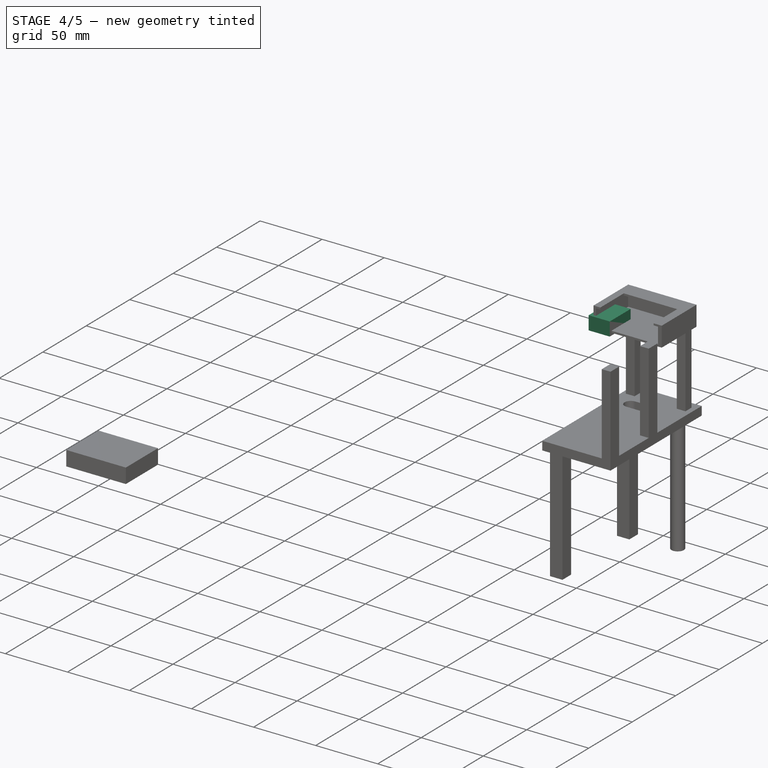
[diagram: stage 4 of 5 — iso view after this stage's code; geometry added in this stage tinted green]
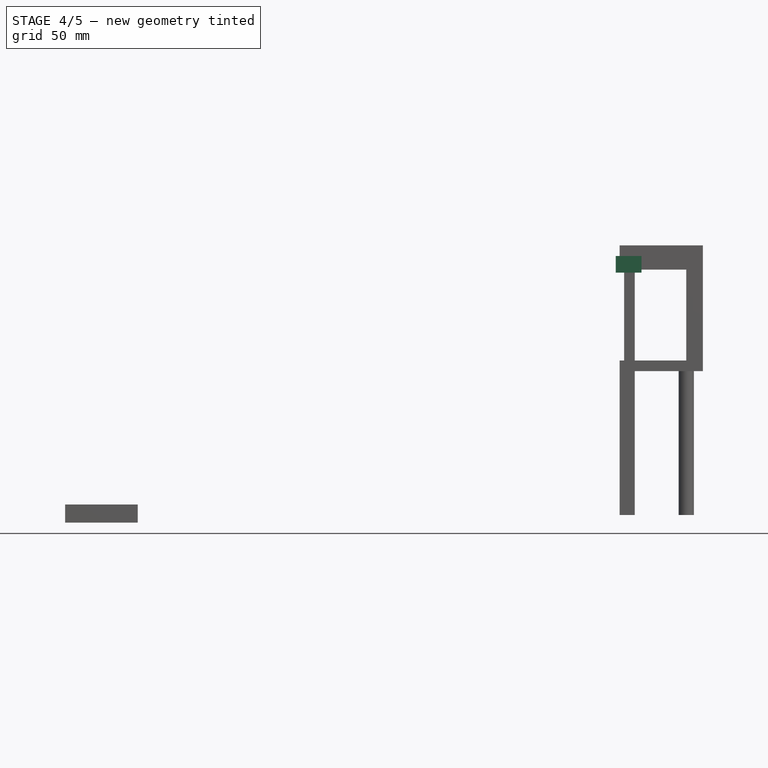
[diagram: stage 4 of 5 — front view after this stage's code; geometry added in this stage tinted green]
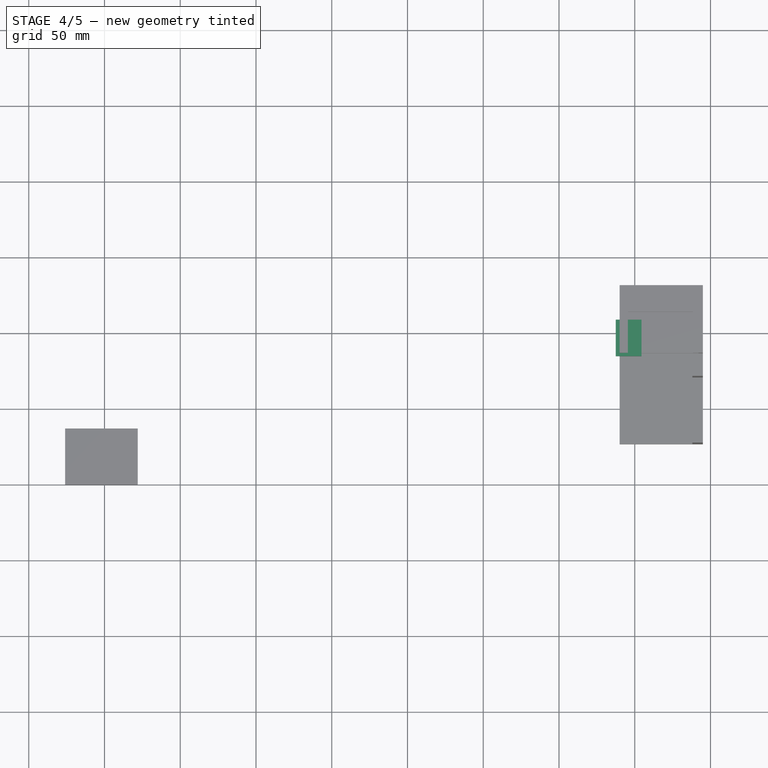
[diagram: stage 4 of 5 — top view after this stage's code; geometry added in this stage tinted green]
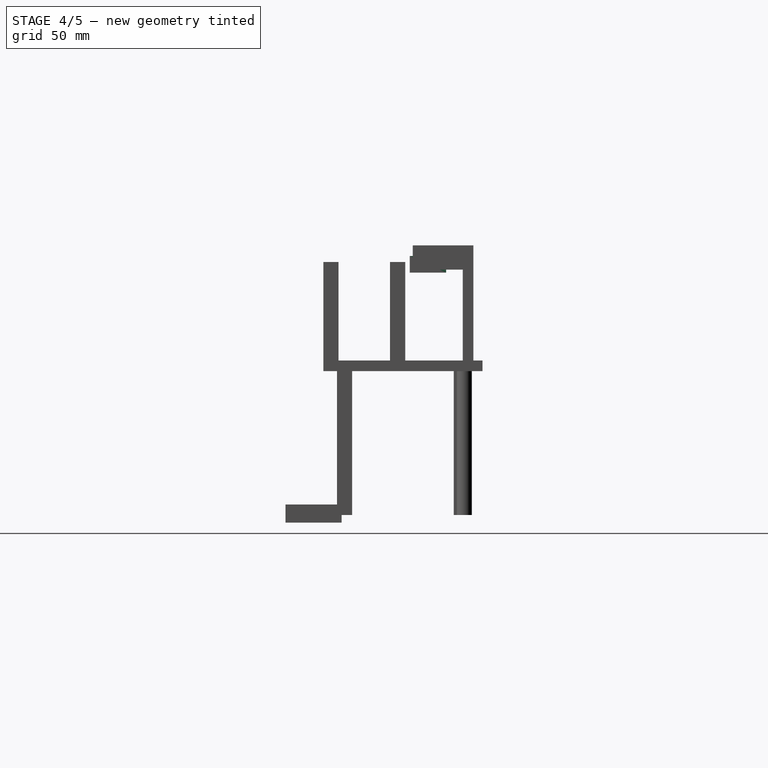
[diagram: stage 4 of 5 — right view after this stage's code; geometry added in this stage tinted green]
FEATURE [Part::Box] Box082  label="Cube010"
  AttacherType = Attacher::AttachEngine3D
  Height = 11
  Length = 17
  Placement = pos=(337.5,106,176) rot=(1,0,0;3.14159rad)
  Width = 24
FEATURE [Part::Box] Box083  label="Cube011"
  AttacherType = Attacher::AttachEngine3D
  Height = 95
  Length = 10
  Placement = pos=(340,34,5) rot=(0,0,1;0rad)
  Width = 10
FEATURE [Part::Box] Box084  label="Cube012"
  AttacherType = Attacher::AttachEngine3D
  Height = 95
  Length = 10
  Placement = pos=(340,111,5) rot=(0,0,1;0rad)
  Width = 10
FEATURE [Part::Box] Box085  label="Platform003"
  AttacherType = Attacher::AttachEngine3D
  Height = 55
  Length = 7
  Placement = pos=(340,25,107) rot=(0,1,0;1.5708rad)
  Width = 105
FEATURE [Part::Box] Box086  label="Cube013"
  AttacherType = Attacher::AttachEngine3D
  Height = 65
  Length = 7
  Placement = pos=(388,25,107) rot=(0,0,1;0rad)
  Width = 10
FEATURE [Part::Box] Box087  label="Cube014"
  AttacherType = Attacher::AttachEngine3D
  Height = 65
  Length = 7
  Placement = pos=(388,69,107) rot=(0,0,1;0rad)
  Width = 10
FEATURE [Part::Box] Box088  label="Cube015"
  AttacherType = Attacher::AttachEngine3D
  Height = 60
  Length = 7
  Placement = pos=(384,117,107) rot=(0,0,1;0rad)
  Width = 7
FEATURE [Part::Box] Box089  label="Cube016"
  AttacherType = Attacher::AttachEngine3D
  Height = 60
  Length = 7
  Placement = pos=(343,117,107) rot=(0,0,1;0rad)
  Width = 7
FEATURE [Part::Box] Box090  label="Cube017"
  AttacherType = Attacher::AttachEngine3D
  Height = 16
  Length = 55
  Placement = pos=(340,124,183) rot=(1,0,0;3.14159rad)
  Width = 40
FEATURE [Part::Box] Box091  label="Cube018"
  AttacherType = Attacher::AttachEngine3D
  Height = 13
  Length = 50
  Placement = pos=(342,121,181.5) rot=(1,0,0;3.14159rad)
  Width = 37
FEATURE [Part::Box] Box092  label="Cube019"
  AttacherType = Attacher::AttachEngine3D
  Height = 11
  Length = 43
  Placement = pos=(345.5,111,185) rot=(1,0,0;3.14159rad)
  Width = 27
FEATURE [Part::Box] Box093  label="Cube020"
  AttacherType = Attacher::AttachEngine3D
  Height = 11
  Length = 17
  Placement = pos=(337.5,106,176) rot=(1,0,0;3.14159rad)
  Width = 24
FEATURE [Part::Cut] Cut008
  Base = -> Box090
  Refine = true
  Tool = -> Box091
FEATURE [Part::Cut] Cut009
  Base = -> Cut008
  Refine = true
  Tool = -> Box092
FEATURE [Part::Cut] Cut010
  Base = -> Cut009
  Refine = true
  Tool = -> Box093
FEATURE [Part::Cylinder] Cylinder003
  Angle = 360
  AttacherType = Attacher::AttachEngine3D
  FirstAngle = 0
  Height = 95
  Placement = pos=(384,118,5) rot=(0,0,1;0rad)
  Radius = 5
  SecondAngle = 0
FEATURE [Sketcher::SketchObject] Sketch015
  ArcFitTolerance = 1e-06
  AttachmentSupport = -> [Box085]
  FullyConstrained = true
  MakeInternals = false
  MapMode = 5
  Placement = pos=(340,25,107) rot=(0,0,-1;1.5708rad)
  sketch-geometry (4):
    g0: ArcOfCircle CenterX=-80.5 CenterY=30 CenterZ=0 NormalX=0 NormalY=0 NormalZ=1 AngleXU=0 Radius=5 StartAngle=0 EndAngle=3.14159
    g1: ArcOfCircle CenterX=-80.5 CenterY=15 CenterZ=0 NormalX=0 NormalY=0 NormalZ=1 AngleXU=0 Radius=5 StartAngle=3.14159 EndAngle=6.28319
    g2: LineSegment StartX=-75.5 StartY=30 StartZ=0 EndX=-75.5 EndY=15 EndZ=0
    g3: LineSegment StartX=-85.5 StartY=30 StartZ=0 EndX=-85.5 EndY=15 EndZ=0
  constraints (10):
    c: Tangent(g0,g2) = 1.5708
    c: Tangent(g0,g3) = -1.5708
    c: Tangent(g1,g2) = 1.5708
    c: Tangent(g1,g3) = -1.5708
    c: Equal(g0,g1)
    c: Vertical(g2)
    c: Distance(g0,g-2) = 80.5
    c: DistanceY(g1,g0) = 15
    c: DistanceY(g-1,g0) = 30
    c: DistanceX(g1,g1) = 10
FEATURE [Part::Extrusion] Extrude004  label="Wirecut001"
  Base = -> Sketch015
  Dir = (0,0,1)
  DirMode = 2
  FaceMakerClass = Part::FaceMakerBullseye
  FaceMakerMode = 3
  LengthFwd = 0
  LengthRev = 7
  Solid = true
  Symmetric = false
FEATURE [Part::Cut] Cut007
  Base = -> Box085
  Refine = true
  Tool = -> Extrude004
FEATURE [Part::Box] Box094  label="Cube021"
  AttacherType = Attacher::AttachEngine3D
  Height = 95
  Length = 10
  Placement = pos=(340,34,5) rot=(0,0,1;0rad)
  Width = 10
FEATURE [Part::Box] Box095  label="Cube022"
  AttacherType = Attacher::AttachEngine3D
  Height = 95
  Length = 10
  Placement = pos=(340,111,5) rot=(0,0,1;0rad)
  Width = 10
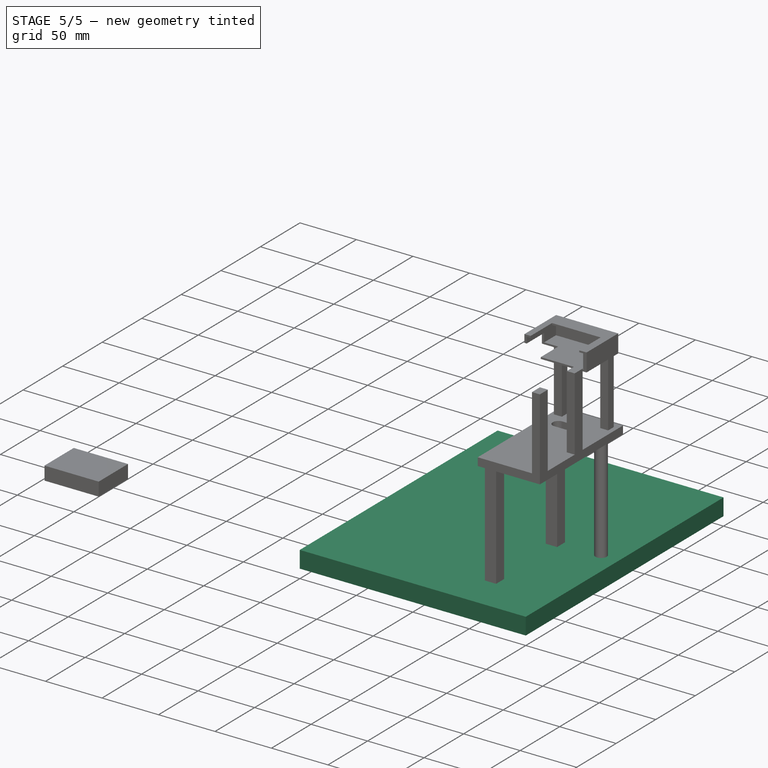
[diagram: stage 5 of 5 — iso view after this stage's code; geometry added in this stage tinted green]
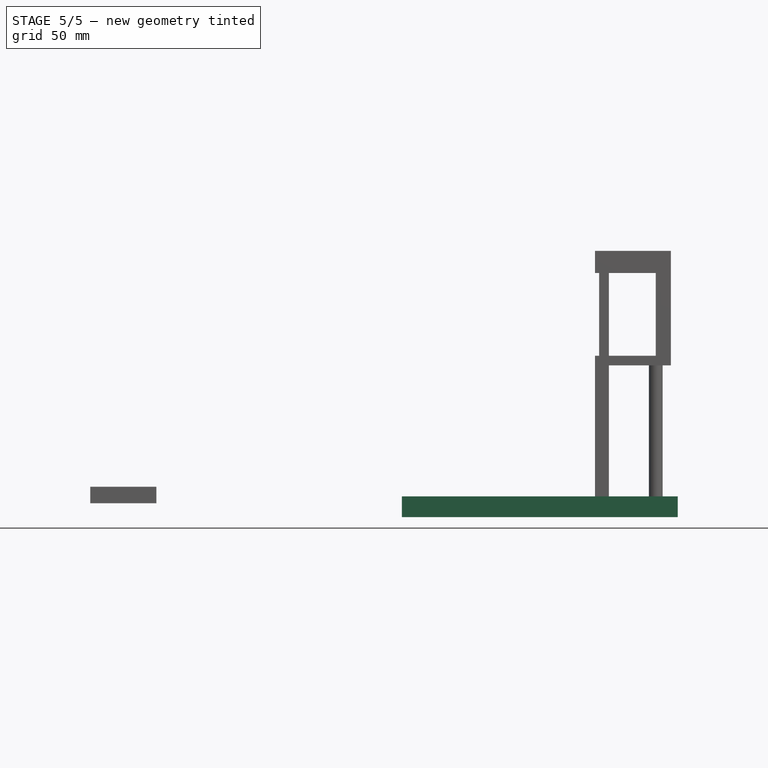
[diagram: stage 5 of 5 — front view after this stage's code; geometry added in this stage tinted green]
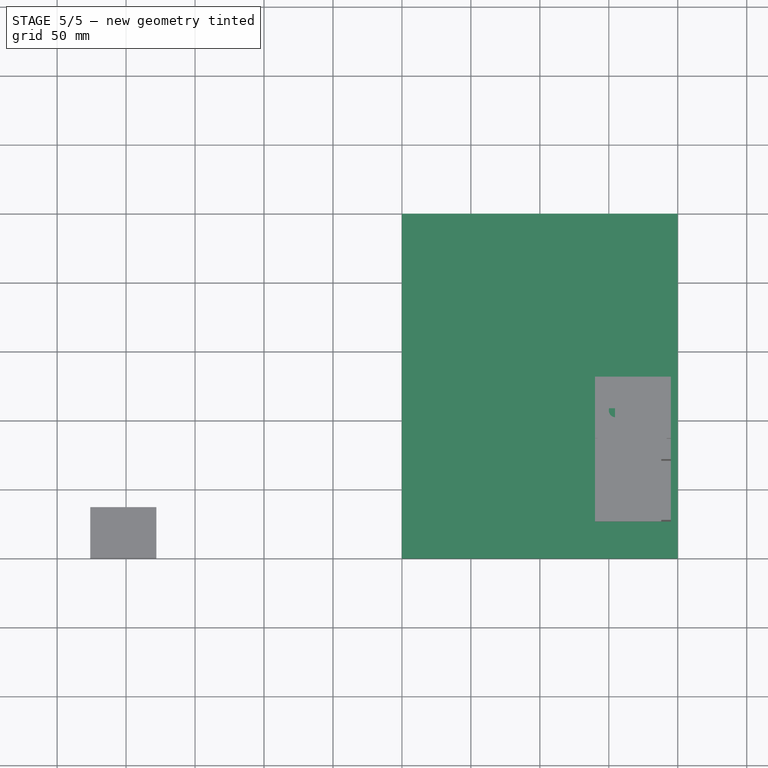
[diagram: stage 5 of 5 — top view after this stage's code; geometry added in this stage tinted green]
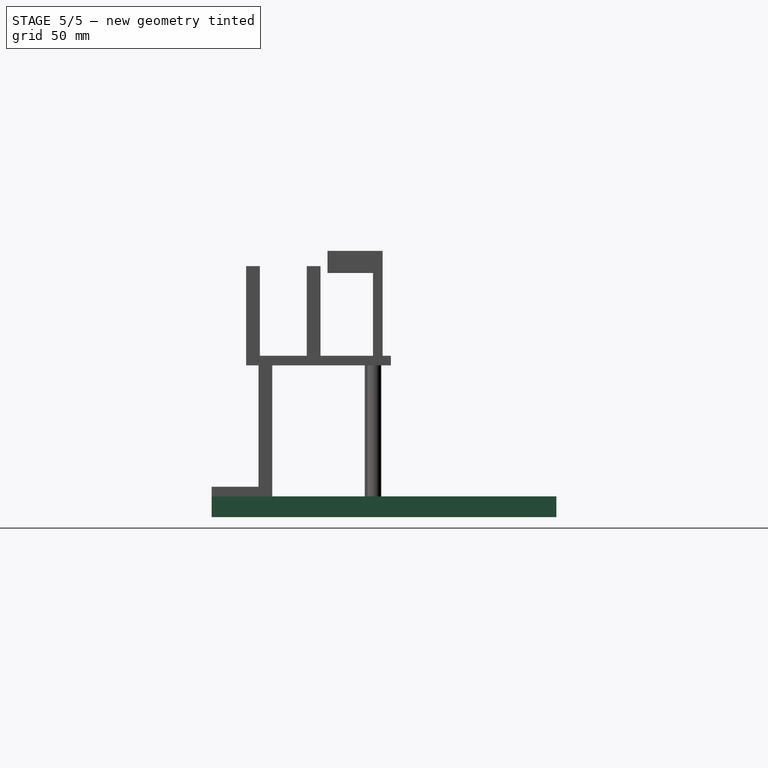
[diagram: stage 5 of 5 — right view after this stage's code; geometry added in this stage tinted green]
FEATURE [Part::Box] Box  label="Base"
  AttacherType = Attacher::AttachEngine3D
  Height = 15
  Length = 200
  Placement = pos=(200,0,-10) rot=(0,0,1;0rad)
  Width = 250
FEATURE [Part::Box] Box005  label="Cube"
  AttacherType = Attacher::AttachEngine3D
  Height = 37
  Length = 48
  Width = 12
FEATURE [Sketcher::SketchObject] Sketch001
  ArcFitTolerance = 1e-06
  AttachmentSupport = -> [Box005]
  FullyConstrained = true
  MakeInternals = false
  MapMode = 3
  Placement = pos=(0,0,0) rot=(1,0,0;1.5708rad)
  sketch-geometry (12):
    g0: ArcOfCircle CenterX=1e-16 CenterY=0 CenterZ=0 NormalX=0 NormalY=0 NormalZ=1 AngleXU=0 Radius=9.5 StartAngle=0.698132 EndAngle=2.44346
    g1: ArcOfCircle CenterX=1e-16 CenterY=0 CenterZ=0 NormalX=0 NormalY=0 NormalZ=1 AngleXU=0 Radius=9.5 StartAngle=2.79253 EndAngle=4.53786
    g2: ArcOfCircle CenterX=1e-16 CenterY=0 CenterZ=0 NormalX=0 NormalY=0 NormalZ=1 AngleXU=0 Radius=9.5 StartAngle=4.88692 EndAngle=6.63225
    g3: ArcOfCircle CenterX=1e-16 CenterY=0 CenterZ=0 NormalX=0 NormalY=0 NormalZ=1 AngleXU=0 Radius=6.75 StartAngle=4.88692 EndAngle=6.63225
    g4: ArcOfCircle CenterX=1e-16 CenterY=0 CenterZ=0 NormalX=0 NormalY=0 NormalZ=1 AngleXU=0 Radius=6.75 StartAngle=2.79253 EndAngle=4.53786
    g5: ArcOfCircle CenterX=1e-16 CenterY=0 CenterZ=0 NormalX=0 NormalY=0 NormalZ=1 AngleXU=0 Radius=6.75 StartAngle=0.698132 EndAngle=2.44346
    g6: LineSegment StartX=-7.27742 StartY=6.10648 StartZ=0 EndX=-5.1708 EndY=4.33882 EndZ=0
    g7: LineSegment StartX=1.17213 StartY=-6.64745 StartZ=0 EndX=1.64966 EndY=-9.35567 EndZ=0
    g8: LineSegment StartX=-1.17212 StartY=-6.64745 StartZ=0 EndX=-1.64966 EndY=-9.35567 EndZ=0
    g9: LineSegment StartX=-8.92708 StartY=3.24919 StartZ=0 EndX=-6.34293 EndY=2.30864 EndZ=0
    g10: LineSegment StartX=6.34293 StartY=2.30864 StartZ=0 EndX=8.92708 EndY=3.24919 EndZ=0
    g11: LineSegment StartX=5.1708 StartY=4.33882 StartZ=0 EndX=7.27742 EndY=6.10648 EndZ=0
  constraints (37):
    c: Radius(g0) = 9.5
    c: Angle(g0) = 1.74533
    c: Symmetric(g0,g0,g-2)
    c: DistanceY(g0,g-1) = 0
    c: Coincident(g1,g0)
    c: Radius(g1) = 9.5
    c: Angle(g1) = 1.74533
    c: Coincident(g2,g0)
    c: Radius(g2) = 9.5
    c: Angle(g2) = 1.74533
    c: Coincident(g3,g0)
    c: Coincident(g4,g0)
    c: Coincident(g5,g0)
    c: Radius(g3) = 6.75
    c: Angle(g3) = 1.74533
    c: Radius(g4) = 6.75
    c: Radius(g5) = 6.75
    c: Angle(g5) = 1.74533
    c: Coincident(g6,g0)
    c: Coincident(g6,g5)
    c: Coincident(g7,g3)
    c: Coincident(g7,g2)
    c: Coincident(g8,g4)
    c: Coincident(g8,g1)
    c: Coincident(g9,g1)
    c: Coincident(g9,g4)
    c: Coincident(g10,g3)
    c: Coincident(g10,g2)
    c: Coincident(g11,g5)
    c: Coincident(g11,g0)
    c: Block(g6)
    c: Block(g5)
    c: Block(g0)
    c: Block(g2)
    c: Block(g3)
    c: Block(g4)
    c: Block(g1)
FEATURE [Part::Extrusion] Extrude003
  Base = -> Sketch001
  Dir = (0,-1,2e-16)
  DirMode = 2
  FaceMakerClass = Part::FaceMakerBullseye
  FaceMakerMode = 3
  LengthFwd = 20
  LengthRev = 0
  Placement = pos=(12.4,2.6,25.0879) rot=(0,-1,0;5.23599rad)
  Solid = true
  Symmetric = false
FEATURE [Part::Cut] Cut
  Base = -> Box005
  Placement = pos=(-26,37,-5.6e-15) rot=(1,0,0;1.5708rad)
  Tool = -> Extrude003
FEATURE [Part::Box] Box072  label="Cube001"
  AttacherType = Attacher::AttachEngine3D
  Height = 95
  Length = 10
  Placement = pos=(340,34,5) rot=(0,0,1;0rad)
  Width = 10
FEATURE [Part::Box] Box073  label="Cube002"
  AttacherType = Attacher::AttachEngine3D
  Height = 95
  Length = 10
  Placement = pos=(340,111,5) rot=(0,0,1;0rad)
  Width = 10
FEATURE [Part::Box] Box074  label="Platform002"
  AttacherType = Attacher::AttachEngine3D
  Height = 55
  Length = 7
  Placement = pos=(340,25,107) rot=(0,1,0;1.5708rad)
  Width = 105
FEATURE [Part::Feature] Part__Feature3629  label="ips7102"
  Placement = pos=(391,116,116) rot=(0,0,1;0rad)
  shape: bbox 48.08 x 13.99 x 44.08 mm, 1935 faces (baked)
FEATURE [Sketcher::SketchObject] Sketch014
  ArcFitTolerance = 1e-06
  AttachmentSupport = -> [Box074]
  FullyConstrained = true
  MakeInternals = false
  MapMode = 5
  Placement = pos=(340,25,107) rot=(0,0,-1;1.5708rad)
  sketch-geometry (4):
    g0: ArcOfCircle CenterX=-80.5 CenterY=30 CenterZ=0 NormalX=0 NormalY=0 NormalZ=1 AngleXU=0 Radius=5 StartAngle=0 EndAngle=3.14159
    g1: ArcOfCircle CenterX=-80.5 CenterY=15 CenterZ=0 NormalX=0 NormalY=0 NormalZ=1 AngleXU=0 Radius=5 StartAngle=3.14159 EndAngle=6.28319
    g2: LineSegment StartX=-75.5 StartY=30 StartZ=0 EndX=-75.5 EndY=15 EndZ=0
    g3: LineSegment StartX=-85.5 StartY=30 StartZ=0 EndX=-85.5 EndY=15 EndZ=0
  constraints (10):
    c: Tangent(g0,g2) = 1.5708
    c: Tangent(g0,g3) = -1.5708
    c: Tangent(g1,g2) = 1.5708
    c: Tangent(g1,g3) = -1.5708
    c: Equal(g0,g1)
    c: Vertical(g2)
    c: Distance(g0,g-2) = 80.5
    c: DistanceY(g1,g0) = 15
    c: DistanceY(g-1,g0) = 30
    c: DistanceX(g1,g1) = 10
FEATURE [Part::Extrusion] Extrude  label="Wirecut"
  Base = -> Sketch014
  Dir = (0,0,1)
  DirMode = 2
  FaceMakerClass = Part::FaceMakerBullseye
  FaceMakerMode = 3
  LengthFwd = 0
  LengthRev = 7
  Solid = true
  Symmetric = false
FEATURE [Part::Cut] Cut003
  Base = -> Box074
  Refine = true
  Tool = -> Extrude
FEATURE [Part::Box] Box075  label="Cube003"
  AttacherType = Attacher::AttachEngine3D
  Height = 65
  Length = 7
  Placement = pos=(388,25,107) rot=(0,0,1;0rad)
  Width = 10
FEATURE [Part::Box] Box076  label="Cube004"
  AttacherType = Attacher::AttachEngine3D
  Height = 65
  Length = 7
  Placement = pos=(388,69,107) rot=(0,0,1;0rad)
  Width = 10
FEATURE [Part::Box] Box077  label="Cube005"
  AttacherType = Attacher::AttachEngine3D
  Height = 60
  Length = 7
  Placement = pos=(384,117,107) rot=(0,0,1;0rad)
  Width = 7
FEATURE [Part::Box] Box078  label="Cube006"
  AttacherType = Attacher::AttachEngine3D
  Height = 60
  Length = 7
  Placement = pos=(343,117,107) rot=(0,0,1;0rad)
  Width = 7
FEATURE [Part::Cylinder] Cylinder002
  Angle = 360
  AttacherType = Attacher::AttachEngine3D
  FirstAngle = 0
  Height = 95
  Placement = pos=(384,118,5) rot=(0,0,1;0rad)
  Radius = 5
  SecondAngle = 0
FEATURE [Part::Feature] Part__Feature  label="fan"
  Placement = pos=(22.5475,33.2927,6) rot=(-0.588042,0.808831,0;3.14159rad)
  shape: bbox 15 x 15 x 4.502 mm, 133 faces (baked)
FEATURE [Part::Feature] Part__Feature3630  label="plastic"
  Placement = pos=(22,36,-5.99e-13) rot=(1,0,0;3.14159rad)
  shape: bbox 1 x 1 x 12 mm, 5 faces (baked)
FEATURE [Part::Feature] Part__Feature3631  label="plastic001"
  Placement = pos=(22,36,-5.99e-13) rot=(1,0,0;3.14159rad)
  shape: bbox 1 x 1 x 12 mm, 5 faces (baked)
FEATURE [Part::Feature] Part__Feature3632  label="plastic002"
  Placement = pos=(22,36,-5.99e-13) rot=(1,0,0;3.14159rad)
  shape: bbox 1 x 1 x 12 mm, 5 faces (baked)
FEATURE [Part::Feature] Part__Feature3633  label="plastic003"
  Placement = pos=(22,36,-5.99e-13) rot=(1,0,0;3.14159rad)
  shape: bbox 1 x 1 x 12 mm, 5 faces (baked)
FEATURE [Part::Feature] Part__Feature3634  label="plastic004"
  Placement = pos=(22,36,-5.99e-13) rot=(1,0,0;3.14159rad)
  shape: bbox 7 x 11 x 3.1 mm, 19 faces (baked)
FEATURE [Part::Feature] Part__Feature3635  label="plastic005"
  Placement = pos=(22,36,-5.99e-13) rot=(1,0,0;3.14159rad)
  shape: bbox 1.4 x 1 x 1.7 mm, 6 faces (baked)
FEATURE [Part::Feature] Part__Feature3636  label="plastic006"
  Placement = pos=(22,36,-5.99e-13) rot=(1,0,0;3.14159rad)
  shape: bbox 1 x 1.4 x 1.7 mm, 6 faces (baked)
FEATURE [Part::Feature] Part__Feature3637  label="plastic007"
  Placement = pos=(22,36,-5.99e-13) rot=(1,0,0;3.14159rad)
  shape: bbox 1 x 1.4 x 1.7 mm, 6 faces (baked)
FEATURE [Part::Feature] Part__Feature3638  label="plastic008"
  Placement = pos=(22,36,-5.99e-13) rot=(1,0,0;3.14159rad)
  shape: bbox 1.4 x 1 x 1.7 mm, 6 faces (baked)
FEATURE [Part::Feature] Part__Feature3639  label="plastic009"
  Placement = pos=(22,36,-5.99e-13) rot=(1,0,0;3.14159rad)
  shape: bbox 1 x 1.4 x 1.7 mm, 6 faces (baked)
FEATURE [Part::Feature] Part__Feature3640  label="plastic010"
  Placement = pos=(22,36,-5.99e-13) rot=(1,0,0;3.14159rad)
  shape: bbox 1 x 1.4 x 1.7 mm, 6 faces (baked)
FEATURE [Part::Feature] Part__Feature3641  label="plastic011"
  Placement = pos=(22,36,-5.99e-13) rot=(1,0,0;3.14159rad)
  shape: bbox 1 x 1.4 x 1.7 mm, 6 faces (baked)
FEATURE [Part::Feature] Part__Feature3642  label="plastic012"
  Placement = pos=(22,36,-5.99e-13) rot=(1,0,0;3.14159rad)
  shape: bbox 1 x 1.4 x 1.7 mm, 6 faces (baked)
FEATURE [Part::Feature] Part__Feature3643  label="plastic013"
  Placement = pos=(22,36,-5.99e-13) rot=(1,0,0;3.14159rad)
  shape: bbox 1.4 x 1 x 1.7 mm, 6 faces (baked)
FEATURE [Part::Feature] Part__Feature3644  label="plastic014"
  Placement = pos=(22,36,-5.99e-13) rot=(1,0,0;3.14159rad)
  shape: bbox 1.4 x 1 x 1.7 mm, 6 faces (baked)
FEATURE [Part::Feature] Part__Feature3645  label="plastic015"
  Placement = pos=(22,36,-5.99e-13) rot=(1,0,0;3.14159rad)
  shape: bbox 1.4 x 1 x 1.7 mm, 6 faces (baked)
FEATURE [Part::Feature] Part__Feature3646  label="plastic016"
  Placement = pos=(22,36,-5.99e-13) rot=(1,0,0;3.14159rad)
  shape: bbox 1 x 1.4 x 1.7 mm, 6 faces (baked)
FEATURE [Part::Feature] Part__Feature3647  label="plastic017"
  Placement = pos=(22,36,-5.99e-13) rot=(1,0,0;3.14159rad)
  shape: bbox 1.4 x 1 x 1.7 mm, 6 faces (baked)
FEATURE [Part::Feature] Part__Feature3648  label="plastic018"
  Placement = pos=(22,36,-5.99e-13) rot=(1,0,0;3.14159rad)
  shape: bbox 1 x 1.4 x 1.7 mm, 6 faces (baked)
FEATURE [Part::Feature] Part__Feature3649  label="plastic019"
  Placement = pos=(22,36,-5.99e-13) rot=(1,0,0;3.14159rad)
  shape: bbox 12.54 x 4.701 x 4.3 mm, 21 faces (baked)
FEATURE [Part::Feature] Part__Feature3650  label="plastic020"
  Placement = pos=(22,36,-5.99e-13) rot=(1,0,0;3.14159rad)
  shape: bbox 16.75 x 16 x 6.5 mm, 18 faces (baked)
FEATURE [App::Part] plastic  label="plastic021"
  Group = -> [Part__Feature3630,Part__Feature3631,Part__Feature3632,Part__Feature3633,Part__Feature3634,Part__Feature3635,Part__Feature3636,Part__Feature3637,Part__Feature3638,Part__Feature3639,Part__Feature3640,Part__Feature3641,Part__Feature3642,Part__Feature3643,Part__Feature3644,Part__Feature3645,Part__Feature3646,Part__Feature3647,Part__Feature3648,Part__Feature3649,Part__Feature3650]
  Origin = -> Origin232
FEATURE [Part::Feature] Part__Feature3651  label="metal_cover_connector"
  Placement = pos=(-2,18.5,11.5) rot=(0,0.707107,0.707107;3.14159rad)
  shape: bbox 48 x 37 x 6 mm, 58 faces (baked)
FEATURE [Part::Feature] Part__Feature3652  label="metal_cover_fan"
  Placement = pos=(-2,18.5,0.5) rot=(0,-0.707107,0.707107;3.14159rad)
  shape: bbox 48 x 37 x 6 mm, 63 faces (baked)
FEATURE [Part::Feature] Part__Feature3653  label="1_27mm_pin_right_angle"
  Placement = pos=(-0.770082,-1.65718,-0.233527) rot=(0,0,1;0rad)
  shape: bbox 2.2 x 4.2 x 0.4 mm, 17 faces (baked)
FEATURE [Part::Feature] Part__Feature3654  label="1_27mm_plastic_for_pin"
  Placement = pos=(-0.452582,-1.45718,-0.233527) rot=(0,1,0;1.5708rad)
  shape: bbox 1.905 x 1 x 1.27 mm, 10 faces (baked)
FEATURE [App::Part] _1_27mm_single_pin_assembled  label="1_27mm_single_pin_assembled"
  Group = -> [Part__Feature3653,Part__Feature3654]
  Origin = -> Origin234
  Placement = pos=(-0.361489,-0.21886,0.454215) rot=(0,0,1;0rad)
FEATURE [Part::Feature] Part__Feature3655  label="1_27mm_pin_right_angle001"
  Placement = pos=(-0.770082,-1.65718,-0.233527) rot=(0,0,1;0rad)
  shape: bbox 2.2 x 4.2 x 0.4 mm, 17 faces (baked)
FEATURE [Part::Feature] Part__Feature3656  label="1_27mm_plastic_for_pin001"
  Placement = pos=(-0.452582,-1.45718,-0.233527) rot=(0,1,0;1.5708rad)
  shape: bbox 1.905 x 1 x 1.27 mm, 10 faces (baked)
FEATURE [App::Part] _1_27mm_single_pin_assembled001  label="1_27mm_single_pin_assembled001"
  Group = -> [Part__Feature3655,Part__Feature3656]
  Origin = -> Origin236
  Placement = pos=(-0.361489,-0.21886,-0.795785) rot=(0,0,1;0rad)
FEATURE [Part::Feature] Part__Feature3657  label="1_27mm_pin_right_angle002"
  Placement = pos=(-0.770082,-1.65718,-0.233527) rot=(0,0,1;0rad)
  shape: bbox 2.2 x 4.2 x 0.4 mm, 17 faces (baked)
FEATURE [Part::Feature] Part__Feature3658  label="1_27mm_plastic_for_pin002"
  Placement = pos=(-0.452582,-1.45718,-0.233527) rot=(0,1,0;1.5708rad)
  shape: bbox 1.905 x 1 x 1.27 mm, 10 faces (baked)
FEATURE [App::Part] _1_27mm_single_pin_assembled002  label="1_27mm_single_pin_assembled002"
  Group = -> [Part__Feature3657,Part__Feature3658]
  Origin = -> Origin238
  Placement = pos=(-0.361489,-0.21886,-2.04579) rot=(0,0,1;0rad)
FEATURE [Part::Feature] Part__Feature3659  label="1_27mm_pin_right_angle003"
  Placement = pos=(-0.770082,-1.65718,-0.233527) rot=(0,0,1;0rad)
  shape: bbox 2.2 x 4.2 x 0.4 mm, 17 faces (baked)
FEATURE [Part::Feature] Part__Feature3660  label="1_27mm_plastic_for_pin003"
  Placement = pos=(-0.452582,-1.45718,-0.233527) rot=(0,1,0;1.5708rad)
  shape: bbox 1.905 x 1 x 1.27 mm, 10 faces (baked)
FEATURE [App::Part] _1_27mm_single_pin_assembled003  label="1_27mm_single_pin_assembled003"
  Group = -> [Part__Feature3659,Part__Feature3660]
  Origin = -> Origin240
  Placement = pos=(-0.361489,-0.21886,-3.29579) rot=(0,0,1;0rad)
FEATURE [Part::Feature] Part__Feature3661  label="1_27mm_pin_right_angle004"
  Placement = pos=(-0.770082,-1.65718,-0.233527) rot=(0,0,1;0rad)
  shape: bbox 2.2 x 4.2 x 0.4 mm, 17 faces (baked)
FEATURE [Part::Feature] Part__Feature3662  label="1_27mm_plastic_for_pin004"
  Placement = pos=(-0.452582,-1.45718,-0.233527) rot=(0,1,0;1.5708rad)
  shape: bbox 1.905 x 1 x 1.27 mm, 10 faces (baked)
FEATURE [App::Part] _1_27mm_single_pin_assembled004  label="1_27mm_single_pin_assembled004"
  Group = -> [Part__Feature3661,Part__Feature3662]
  Origin = -> Origin242
  Placement = pos=(-0.361489,-0.21886,-4.54579) rot=(0,0,1;0rad)
FEATURE [Part::Feature] Part__Feature3663  label="1_27mm_pin_right_angle005"
  Placement = pos=(-0.770082,-1.65718,-0.233527) rot=(0,0,1;0rad)
  shape: bbox 2.2 x 4.2 x 0.4 mm, 17 faces (baked)
FEATURE [Part::Feature] Part__Feature3664  label="1_27mm_plastic_for_pin005"
  Placement = pos=(-0.452582,-1.45718,-0.233527) rot=(0,1,0;1.5708rad)
  shape: bbox 1.905 x 1 x 1.27 mm, 10 faces (baked)
FEATURE [App::Part] _1_27mm_single_pin_assembled005  label="1_27mm_single_pin_assembled005"
  Group = -> [Part__Feature3663,Part__Feature3664]
  Origin = -> Origin244
  Placement = pos=(-3.17165,-0.21886,-3.76284) rot=(0,1,0;3.14159rad)
FEATURE [Part::Feature] Part__Feature3665  label="1_27mm_pin_right_angle006"
  Placement = pos=(-0.770082,-1.65718,-0.233527) rot=(0,0,1;0rad)
  shape: bbox 2.2 x 4.2 x 0.4 mm, 17 faces (baked)
FEATURE [Part::Feature] Part__Feature3666  label="1_27mm_plastic_for_pin006"
  Placement = pos=(-0.452582,-1.45718,-0.233527) rot=(0,1,0;1.5708rad)
  shape: bbox 1.905 x 1 x 1.27 mm, 10 faces (baked)
FEATURE [App::Part] _1_27mm_single_pin_assembled006  label="1_27mm_single_pin_assembled006"
  Group = -> [Part__Feature3665,Part__Feature3666]
  Origin = -> Origin246
  Placement = pos=(-3.17165,-0.21886,-5.01284) rot=(0,1,0;3.14159rad)
FEATURE [Part::Feature] Part__Feature3667  label="1_27mm_pin_right_angle007"
  Placement = pos=(-0.770082,-1.65718,-0.233527) rot=(0,0,1;0rad)
  shape: bbox 2.2 x 4.2 x 0.4 mm, 17 faces (baked)
FEATURE [Part::Feature] Part__Feature3668  label="1_27mm_plastic_for_pin007"
  Placement = pos=(-0.452582,-1.45718,-0.233527) rot=(0,1,0;1.5708rad)
  shape: bbox 1.905 x 1 x 1.27 mm, 10 faces (baked)
FEATURE [App::Part] _1_27mm_single_pin_assembled007  label="1_27mm_single_pin_assembled007"
  Group = -> [Part__Feature3667,Part__Feature3668]
  Origin = -> Origin248
  Placement = pos=(-3.17165,-0.21886,-0.0128383) rot=(0,1,0;3.14159rad)
FEATURE [Part::Feature] Part__Feature3669  label="1_27mm_pin_right_angle008"
  Placement = pos=(-0.770082,-1.65718,-0.233527) rot=(0,0,1;0rad)
  shape: bbox 2.2 x 4.2 x 0.4 mm, 17 faces (baked)
FEATURE [Part::Feature] Part__Feature3670  label="1_27mm_plastic_for_pin008"
  Placement = pos=(-0.452582,-1.45718,-0.233527) rot=(0,1,0;1.5708rad)
  shape: bbox 1.905 x 1 x 1.27 mm, 10 faces (baked)
FEATURE [App::Part] _1_27mm_single_pin_assembled008  label="1_27mm_single_pin_assembled008"
  Group = -> [Part__Feature3669,Part__Feature3670]
  Origin = -> Origin250
  Placement = pos=(-3.17165,-0.21886,-2.51284) rot=(0,1,0;3.14159rad)
FEATURE [Part::Feature] Part__Feature3671  label="1_27mm_pin_right_angle009"
  Placement = pos=(-0.770082,-1.65718,-0.233527) rot=(0,0,1;0rad)
  shape: bbox 2.2 x 4.2 x 0.4 mm, 17 faces (baked)
FEATURE [Part::Feature] Part__Feature3672  label="1_27mm_plastic_for_pin009"
  Placement = pos=(-0.452582,-1.45718,-0.233527) rot=(0,1,0;1.5708rad)
  shape: bbox 1.905 x 1 x 1.27 mm, 10 faces (baked)
FEATURE [App::Part] _1_27mm_single_pin_assembled009  label="1_27mm_single_pin_assembled009"
  Group = -> [Part__Feature3671,Part__Feature3672]
  Origin = -> Origin252
  Placement = pos=(-3.17165,-0.21886,-1.26284) rot=(0,1,0;3.14159rad)
FEATURE [App::Part] _1_27mm_2x10pin  label="1_27mm_2x10pin"
  Group = -> [_1_27mm_single_pin_assembled,_1_27mm_single_pin_assembled001,_1_27mm_single_pin_assembled002,_1_27mm_single_pin_assembled003,_1_27mm_single_pin_assembled004,_1_27mm_single_pin_assembled005,_1_27mm_single_pin_assembled006,_1_27mm_single_pin_assembled007,_1_27mm_single_pin_assembled008,_1_27mm_single_pin_assembled009]
  Origin = -> Origin254
  Placement = pos=(18.0516,5.67069,10.176) rot=(1,0,0;1.5708rad)
FEATURE [App::Part] Part016
  Origin = -> Origin258
FEATURE [App::Part] pms7003
  Group = -> [Part__Feature,plastic,Part__Feature3651,Part__Feature3652,_1_27mm_2x10pin,Box005,Sketch001,Extrude003,Cut,Part016]
  Origin = -> Origin256
  Placement = pos=(365,84,181) rot=(0,1,0;3.14159rad)
FEATURE [Part::Box] Box079  label="Cube007"
  AttacherType = Attacher::AttachEngine3D
  Height = 16
  Length = 55
  Placement = pos=(340,124,183) rot=(1,0,0;3.14159rad)
  Width = 40
FEATURE [Part::Box] Box080  label="Cube008"
  AttacherType = Attacher::AttachEngine3D
  Height = 13
  Length = 50
  Placement = pos=(342,121,181.5) rot=(1,0,0;3.14159rad)
  Width = 37
FEATURE [Part::Box] Box081  label="Cube009"
  AttacherType = Attacher::AttachEngine3D
  Height = 11
  Length = 43
  Placement = pos=(345.5,111,185) rot=(1,0,0;3.14159rad)
  Width = 27
FEATURE [Part::Cut] Cut004
  Base = -> Box079
  Refine = true
  Tool = -> Box080
FEATURE [Part::Cut] Cut005
  Base = -> Cut004
  Refine = true
  Tool = -> Box081
FEATURE [Part::Cut] Cut006
  Base = -> Cut005
  Refine = true
  Tool = -> Box082
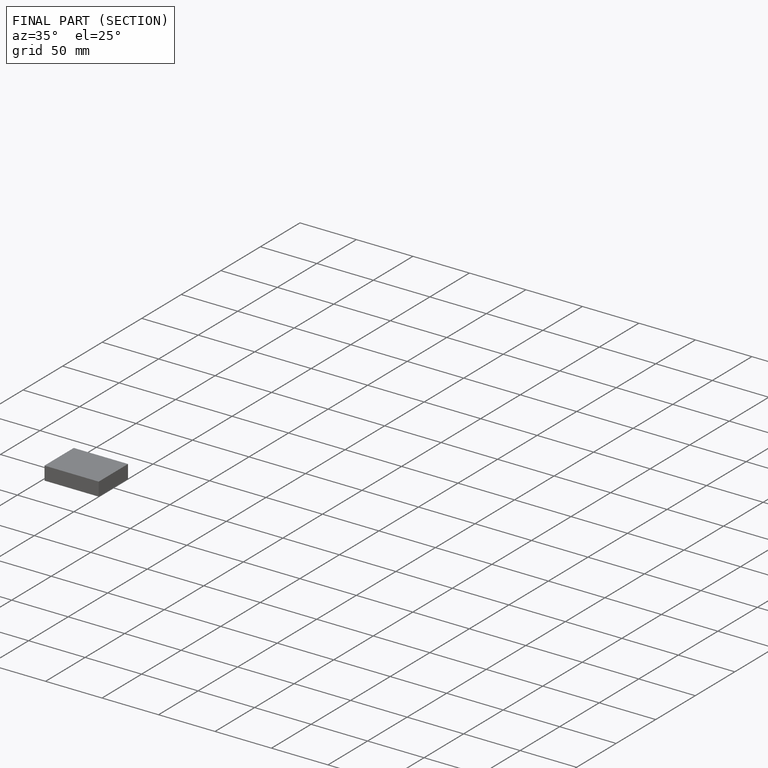
[diagram: finished part — half-section view (interior)]
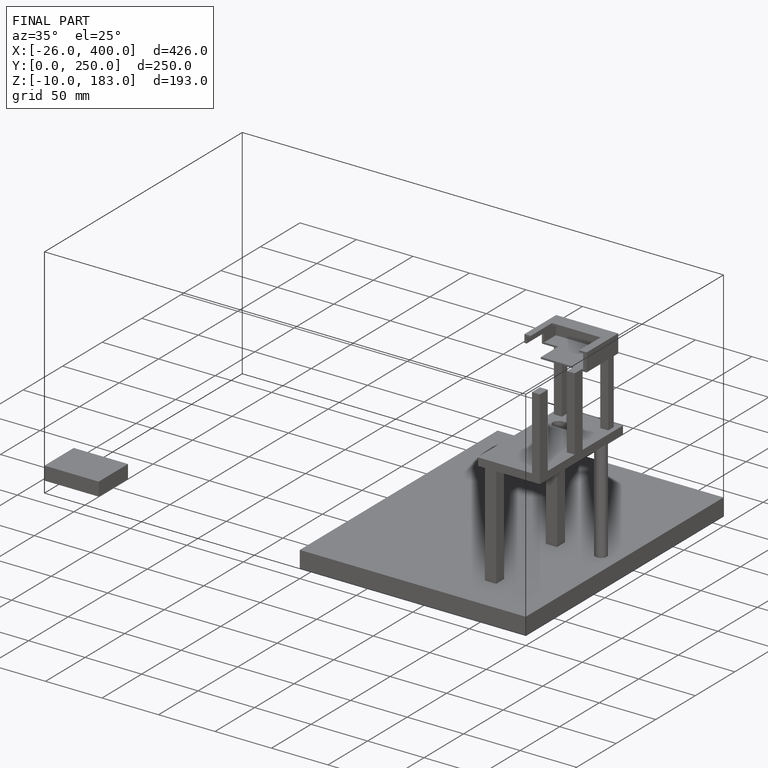
[diagram: finished part — iso view with bounding-box wireframe]
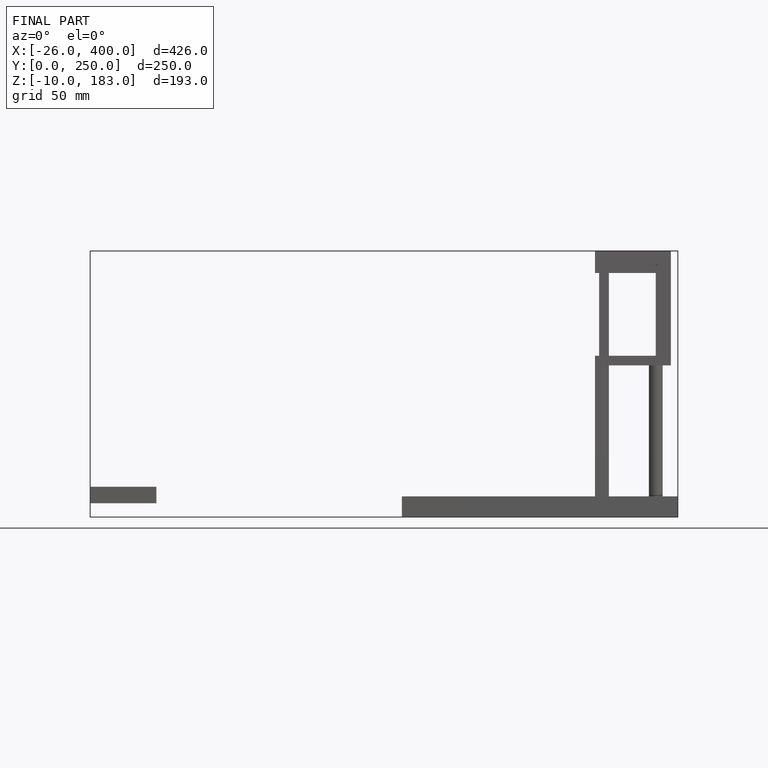
[diagram: finished part — front view with bounding-box wireframe]
